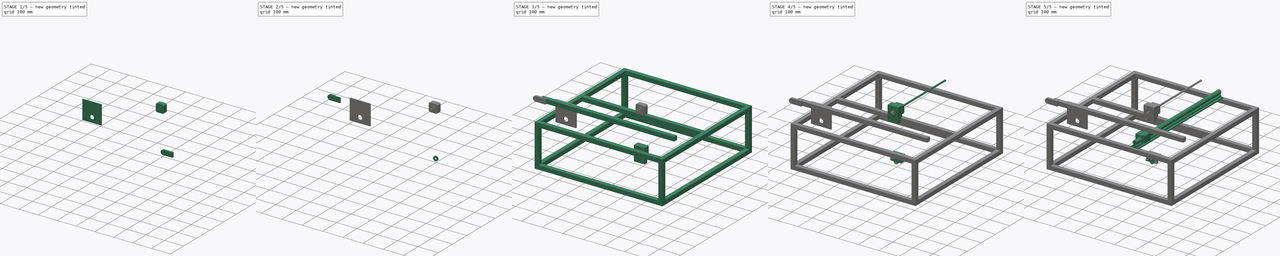
[diagram: build sequence overview — one tinted view per stage of 5, left to right]
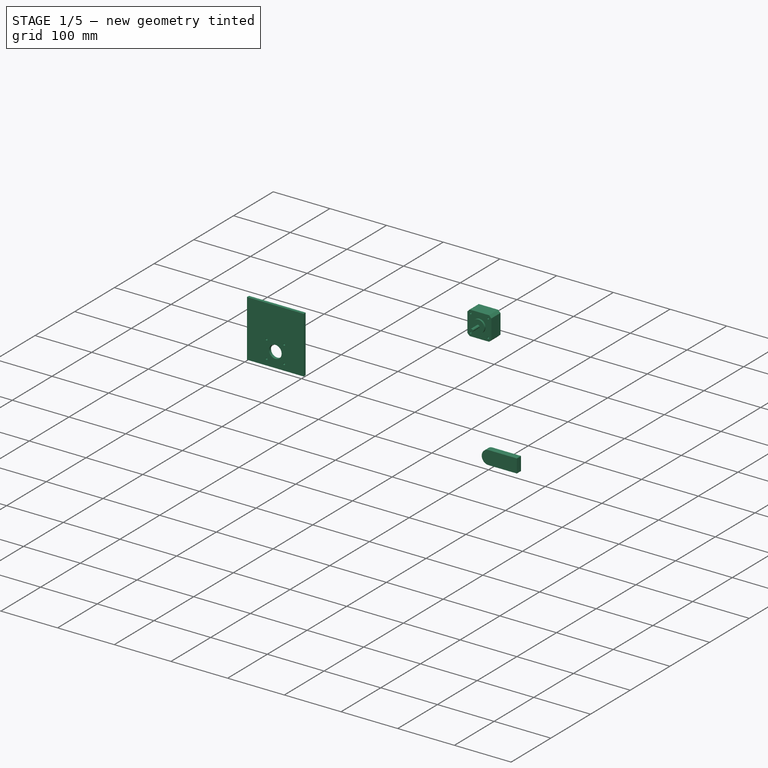
[diagram: stage 1 of 5 — iso view after this stage's code; geometry added in this stage tinted green]
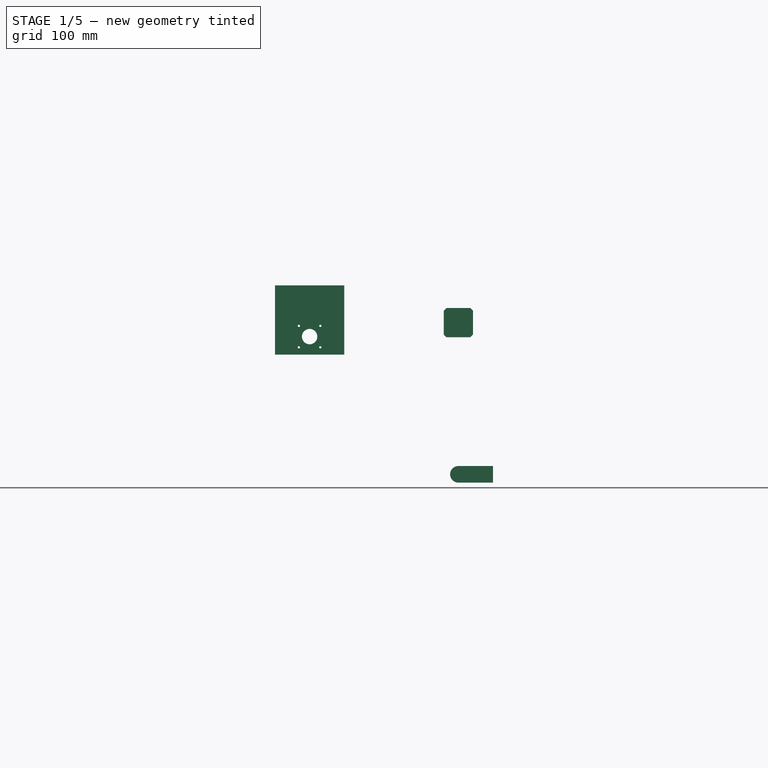
[diagram: stage 1 of 5 — front view after this stage's code; geometry added in this stage tinted green]
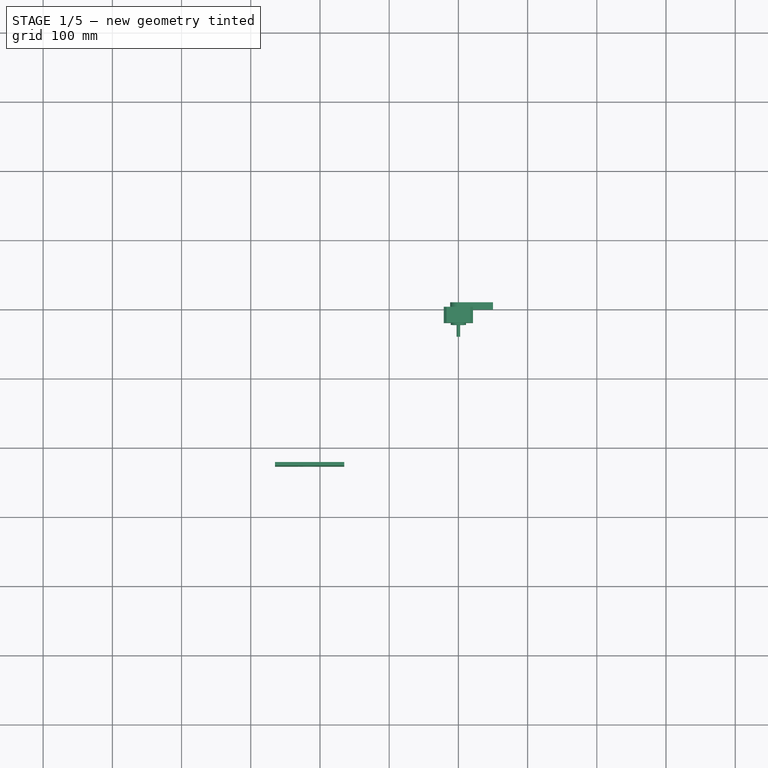
[diagram: stage 1 of 5 — top view after this stage's code; geometry added in this stage tinted green]
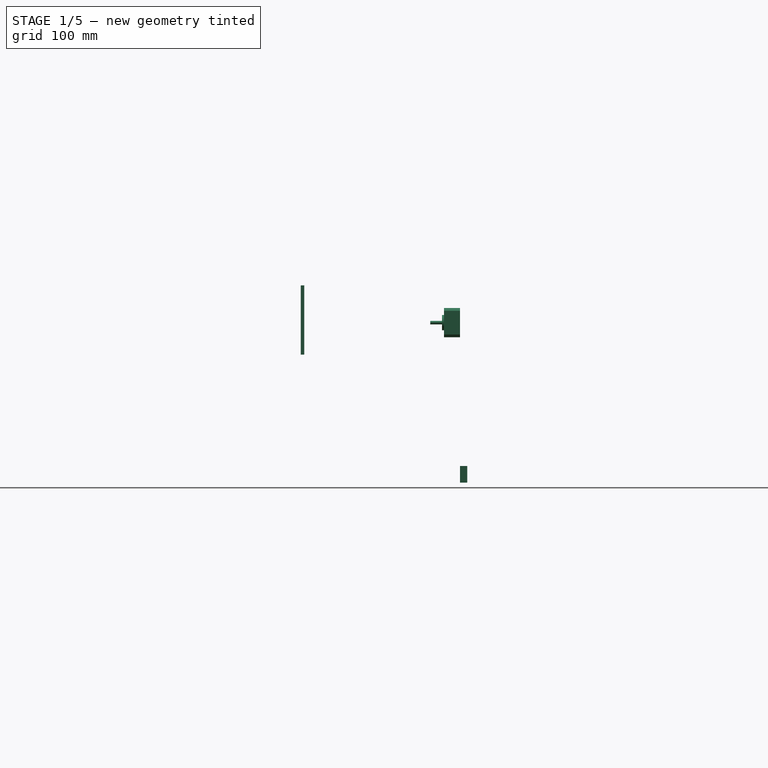
[diagram: stage 1 of 5 — right view after this stage's code; geometry added in this stage tinted green]
FCSTD DOCUMENT  (FreeCAD 0.20R29603 (Git))
Label: PCBStacker
License: All rights reserved
LicenseURL: http://en.wikipedia.org/wiki/All_rights_reserved
objects: PartDesign::Body×17, PartDesign::SubtractiveCylinder×16, Sketcher::SketchObject×10, PartDesign::LinearPattern×10, PartDesign::Pad×8, PartDesign::AdditiveCylinder×8, PartDesign::FeatureBase×7, App::Part×6, PartDesign::AdditiveBox×5, PartDesign::SubtractiveBox×4, PartDesign::Chamfer×2, Spreadsheet::Sheet×1, PartDesign::Revolution×1, PartDesign::Mirrored×1, PartDesign::Pocket×1
note: 135 computed .brp shape members not serialized (recipe doc carries the construction recipe); baked Part::Feature solids carry a one-line shape summary decoded from their .brp

FEATURE [PartDesign::Body] Body006  label="Back Ball Rail Carrage"
  BaseFeature = -> Body005
  Group = -> [Clone002]
  Origin = -> Origin009
  Tip = -> Clone002
FEATURE [PartDesign::AdditiveBox] Box002
  AttacherType = Attacher::AttachEngine3D
  Height = 42.3
  Length = 42.3
  Width = 23
FEATURE [PartDesign::Chamfer] Chamfer
  Angle = 45
  Base = -> Box002 [Edge6,Edge2]
  BaseFeature = -> Box002
  ChamferType = 0
  FlipDirection = false
  Size = 4
  Size2 = 1
  SupportTransform = false
  UseAllEdges = false
FEATURE [PartDesign::Chamfer] Chamfer001
  Angle = 45
  Base = -> Chamfer [Edge3,Edge13]
  BaseFeature = -> Chamfer
  ChamferType = 0
  FlipDirection = false
  Size = 4
  Size2 = 1
  SupportTransform = false
  UseAllEdges = false
FEATURE [PartDesign::SubtractiveCylinder] Cylinder002
  Angle = 360
  AttacherType = Attacher::AttachEngine3D
  AttachmentOffset = pos=(5.65,5.65,-5) rot=(0,0,1;0rad)
  BaseFeature = -> Chamfer001
  FirstAngle = 0
  Height = 10
  MapMode = 5
  Placement = pos=(5.65,5,5.65) rot=(1,0,0;1.5708rad)
  Radius = 1.5
  SecondAngle = 0
  Support = -> [XZ_Plane]
FEATURE [PartDesign::SubtractiveCylinder] Cylinder003
  Angle = 360
  AttacherType = Attacher::AttachEngine3D
  AttachmentOffset = pos=(36.65,5.65,-5) rot=(0,0,1;0rad)
  BaseFeature = -> Cylinder002
  FirstAngle = 0
  Height = 10
  MapMode = 5
  Placement = pos=(36.65,5,5.65) rot=(1,0,0;1.5708rad)
  Radius = 1.5
  SecondAngle = 0
  Support = -> [XZ_Plane]
FEATURE [PartDesign::LinearPattern] LinearPattern004
  BaseFeature = -> Cylinder003
  Direction = -> Z_Axis010
  Length = 31
  Occurrences = 2
  Originals = -> [Cylinder002]
  Placement = pos=(36.65,5,5.65) rot=(1,0,0;1.5708rad)
FEATURE [PartDesign::LinearPattern] LinearPattern005
  BaseFeature = -> LinearPattern004
  Direction = -> Z_Axis010
  Length = 31
  Occurrences = 2
  Originals = -> [Cylinder003]
  Placement = pos=(36.65,5,5.65) rot=(1,0,0;1.5708rad)
FEATURE [PartDesign::AdditiveCylinder] Cylinder004
  Angle = 360
  AttacherType = Attacher::AttachEngine3D
  AttachmentOffset = pos=(21.15,21.15,0) rot=(0,0,1;0rad)
  BaseFeature = -> LinearPattern005
  FirstAngle = 0
  Height = 3
  MapMode = 5
  Placement = pos=(21.15,-4.7e-15,21.15) rot=(1,0,0;1.5708rad)
  Radius = 11
  SecondAngle = 0
  Support = -> [XZ_Plane010]
FEATURE [PartDesign::AdditiveCylinder] Cylinder005
  Angle = 360
  AttacherType = Attacher::AttachEngine3D
  AttachmentOffset = pos=(21.15,21.15,0) rot=(0,0,1;0rad)
  BaseFeature = -> Cylinder004
  FirstAngle = 0
  Height = 20
  MapMode = 5
  Placement = pos=(21.15,-4.7e-15,21.15) rot=(1,0,0;1.5708rad)
  Radius = 2.5
  SecondAngle = 0
  Support = -> [XZ_Plane010]
FEATURE [PartDesign::Body] Body014  label="Leading Conveyor Bearing"
  Group = -> [Cylinder013,Cylinder014,Cylinder015,Cylinder016,Cylinder017,Cylinder018]
  Origin = -> Origin019
  Placement = pos=(-345,-236.5,275) rot=(0,0,1;0rad)
  Tip = -> Cylinder018
  expr: .Placement.Base.x = -1 * <<Params>>.Conveyor_Rail_Length / 2 - 20
  expr: .Placement.Base.y = -1 * <<Params>>.Front_Carrage_Placement + 3.5
  expr: .Placement.Base.z = <<Params>>.Conveyor_Height + <<Params>>.Extrusion_width / 2
FEATURE [App::Part] Part001  label="Carrage"
  Group = -> [Body013,Body014]
  Origin = -> Origin002
FEATURE [Sketcher::SketchObject] Sketch008
  FullyConstrained = true
  MapMode = 5
  Placement = pos=(0,0,0) rot=(1,0,0;1.5708rad)
  Support = -> [XZ_Plane021]
  sketch-geometry (4):
    g0: ArcOfCircle CenterX=0 CenterY=12 CenterZ=0 NormalX=0 NormalY=0 NormalZ=1 AngleXU=0 Radius=12 StartAngle=1.5708 EndAngle=4.71239
    g1: LineSegment StartX=0 StartY=24 StartZ=0 EndX=50 EndY=24 EndZ=0
    g2: LineSegment StartX=50 StartY=24 StartZ=0 EndX=50 EndY=0 EndZ=0
    g3: LineSegment StartX=-2.2e-15 StartY=0 StartZ=0 EndX=50 EndY=0 EndZ=0
  constraints (12):
    c: PointOnObject(g0,g-2)
    c: Coincident(g0,g-1)
    c: PointOnObject(g0,g-2)
    c: Coincident(g1,g0)
    c: Horizontal(g1)
    c: Coincident(g2,g1)
    c: Vertical(g2)
    c: Coincident(g3,g0)
    c: Coincident(g3,g2)
    c: Horizontal(g3)
    c: DistanceY(g2,g1) = 24
    c: DistanceX(g3,g3) = 50
FEATURE [PartDesign::Pad] Pad007
  Direction = (0,-1,2e-16)
  Length = 10.5
  Length2 = 10
  Placement = pos=(0,0,0) rot=(1,0,0;1.5708rad)
  Profile = -> Sketch008
  ReferenceAxis = -> Sketch008 [N_Axis]
  Reversed = true
  Type = 0
FEATURE [PartDesign::Body] Body016  label="Leading Bearing Holder - Back "
  BaseFeature = -> Body015
  Group = -> [Clone]
  Origin = -> Origin022
  Placement = pos=(0,-480,550) rot=(1,0,0;3.14159rad)
  Tip = -> Clone
  expr: .Placement.Base.y = -1 * <<Params>>.Front_Carrage_Placement * 2
  expr: .Placement.Base.z = <<Params>>.Conveyor_Height * 2 + <<Params>>.Extrusion_width
FEATURE [Sketcher::SketchObject] Sketch009
  AttachmentOffset = pos=(0,0,230) rot=(0,0,1;0rad)
  FullyConstrained = true
  MapMode = 5
  Placement = pos=(0,-230,5.11e-14) rot=(1,0,0;1.5708rad)
  Support = -> [XZ_Plane023]
  expr: .AttachmentOffset.Base.x = 0
  expr: .AttachmentOffset.Base.y = 0
  expr: .AttachmentOffset.Base.z = <<Params>>.Front_Carrage_Placement - <<Params>>.Extrusion_width / 2
  expr: Constraints[10] = <<Params>>.BD_X_Length
  expr: Constraints[11] = <<Params>>.BD_Y_Length
  expr: Constraints[8] = <<Params>>.Carrage_Rails_Height + <<Params>>.Conveyor_Offset_From_Carrage_Rail + <<Params>>.Extrusion_width
  expr: Constraints[9] = <<Params>>.BD_X_Placement
  sketch-geometry (4):
    g0: LineSegment StartX=-265 StartY=285 StartZ=0 EndX=-165 EndY=285 EndZ=0
    g1: LineSegment StartX=-165 StartY=285 StartZ=0 EndX=-165 EndY=185 EndZ=0
    g2: LineSegment StartX=-165 StartY=185 StartZ=0 EndX=-265 EndY=185 EndZ=0
    g3: LineSegment StartX=-265 StartY=185 StartZ=0 EndX=-265 EndY=285 EndZ=0
  constraints (12):
    c: Horizontal(g0)
    c: Coincident(g0,g1)
    c: Vertical(g1)
    c: Coincident(g1,g2)
    c: Horizontal(g2)
    c: Coincident(g2,g3)
    c: Coincident(g3,g0)
    c: Vertical(g3)
    c: DistanceY(g-1,g0) = 285
    c: DistanceX(g1,g-1) = 165
    c: DistanceX(g2,g1) = 100
    c: DistanceY(g1,g0) = 100
FEATURE [PartDesign::Pad] Pad008
  Direction = (0,-1,2e-16)
  Length = 5
  Length2 = 10
  Placement = pos=(0,0,0) rot=(1,0,0;1.5708rad)
  Profile = -> Sketch009
  ReferenceAxis = -> Sketch009 [N_Axis]
  Reversed = true
  Type = 0
FEATURE [PartDesign::FeatureBase] Clone006
  BaseFeature = -> Body007
  Placement = pos=(-21.15,-23,210) rot=(0,0,1;0rad)
FEATURE [PartDesign::Body] Body018  label="Belt Driver Stepper"
  Group = -> [Clone006]
  Origin = -> Origin024
  Placement = pos=(-215,-202,-20) rot=(0,0,1;0rad)
  Tip = -> Clone006
  expr: .Placement.Base.x = -1 * (<<Params>>.BD_X_Placement + <<Params>>.BD_X_Length / 2)
  expr: .Placement.Base.y = -<<Params>>.Front_Carrage_Placement + <<Params>>.Extrusion_width / 2 + 5 + 23
  expr: .Placement.Base.z = -<<Params>>.Extrusion_width
FEATURE [App::Part] Part002  label="Movement Hardware"
  Group = -> [Body003,Body004,Body005,Body006,Body007,Body008,Body009,Clone003,Clone004,Body018]
  Origin = -> Origin006
FEATURE [Sketcher::SketchObject] Sketch010
  AttachmentOffset = pos=(-215,211,230) rot=(0,0,1;0rad)
  FullyConstrained = true
  MapMode = 5
  Placement = pos=(-215,-230,211) rot=(1,0,0;1.5708rad)
  Support = -> [XZ_Plane023]
  expr: .AttachmentOffset.Base.x = -<<Params>>.Front_Carrage_Placement + <<Params>>.Extrusion_width / 2 + 5 + 10
  expr: .AttachmentOffset.Base.y = <<Params>>.Conveyor_Height - 54
  expr: .AttachmentOffset.Base.z = <<Params>>.Front_Carrage_Placement - <<Params>>.Extrusion_width / 2
  sketch-geometry (5):
    g0: Circle CenterX=0 CenterY=0 CenterZ=0 NormalX=0 NormalY=0 NormalZ=1 AngleXU=0 Radius=11.1
    g1: Circle CenterX=-15.5 CenterY=15.5 CenterZ=0 NormalX=0 NormalY=0 NormalZ=1 AngleXU=0 Radius=1.6
    g2: Circle CenterX=15.5 CenterY=15.5 CenterZ=0 NormalX=0 NormalY=0 NormalZ=1 AngleXU=0 Radius=1.6
    g3: Circle CenterX=15.5 CenterY=-15.5 CenterZ=0 NormalX=0 NormalY=0 NormalZ=1 AngleXU=0 Radius=1.6
    g4: Circle CenterX=-15.5 CenterY=-15.5 CenterZ=0 NormalX=0 NormalY=0 NormalZ=1 AngleXU=0 Radius=1.6
  constraints (11):
    c: Coincident(g0,g-1)
    c: Diameter(g0) = 22.2
    c: Diameter(g1) = 3.2
    c: DistanceX(g1,g0) = 15.5
    c: DistanceY(g0,g1) = 15.5
    c: Diameter(g2) = 3.2
    c: Symmetric(g2,g1,g-2)
    c: Diameter(g4) = 3.2
    c: Diameter(g3) = 3.2
    c: Symmetric(g3,g2,g-1)
    c: Symmetric(g3,g4,g-2)
FEATURE [PartDesign::Pocket] Pocket
  BaseFeature = -> Pad008
  Direction = (0,1,-2e-16)
  Length = 5
  Length2 = 5
  Placement = pos=(0,0,0) rot=(1,0,0;1.5708rad)
  Profile = -> Sketch010
  ReferenceAxis = -> Sketch010 [N_Axis]
  Type = 0
FEATURE [PartDesign::Body] Body017  label="Belt Driver"
  Group = -> [Sketch009,Pad008,Sketch010,Pocket]
  Origin = -> Origin023
  Tip = -> Pocket
FEATURE [App::Part] Part005  label="Printed Conveyor Parts"
  Group = -> [Body015,Body016,Body017]
  Origin = -> Origin020
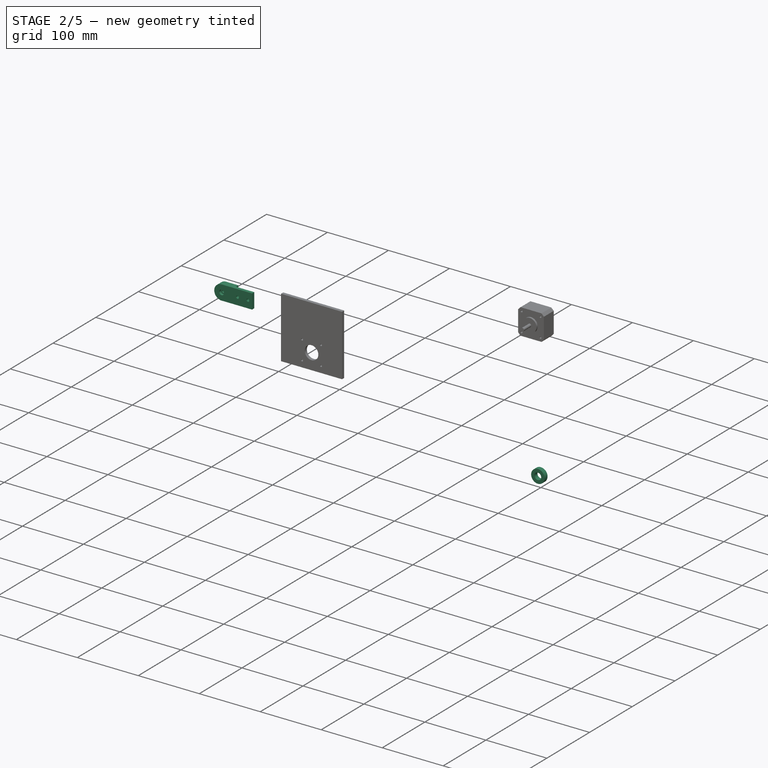
[diagram: stage 2 of 5 — iso view after this stage's code; geometry added in this stage tinted green]
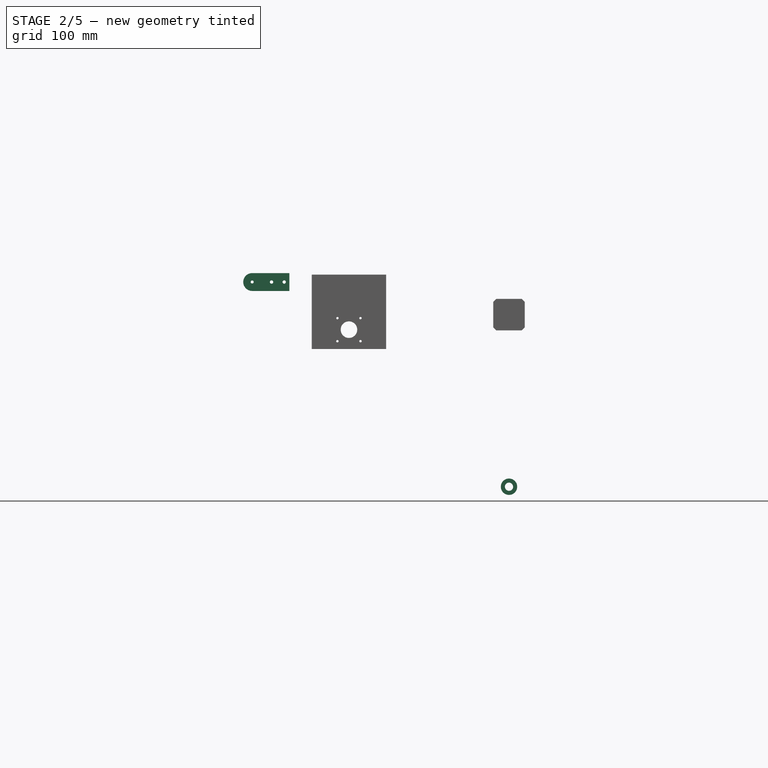
[diagram: stage 2 of 5 — front view after this stage's code; geometry added in this stage tinted green]
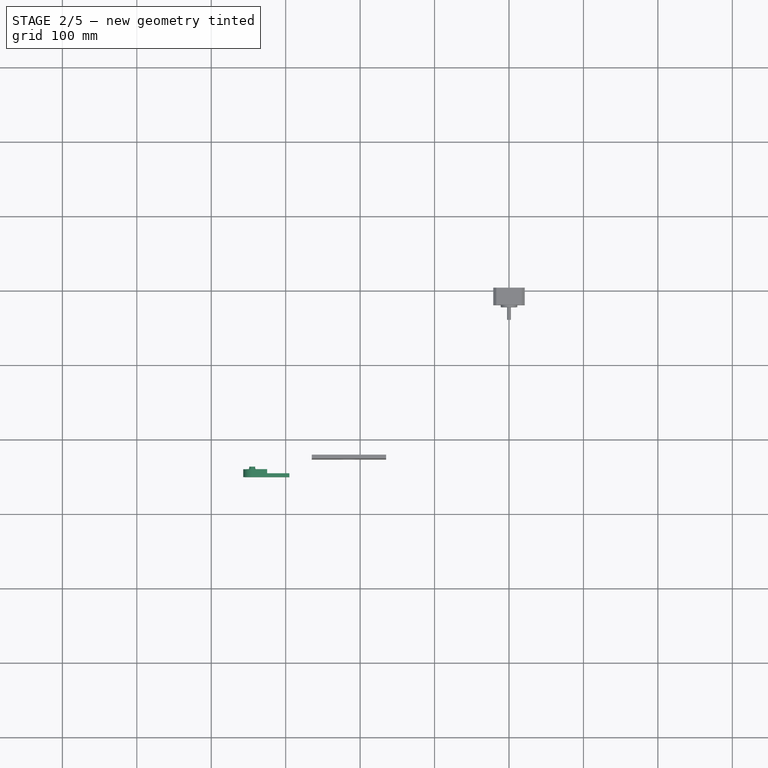
[diagram: stage 2 of 5 — top view after this stage's code; geometry added in this stage tinted green]
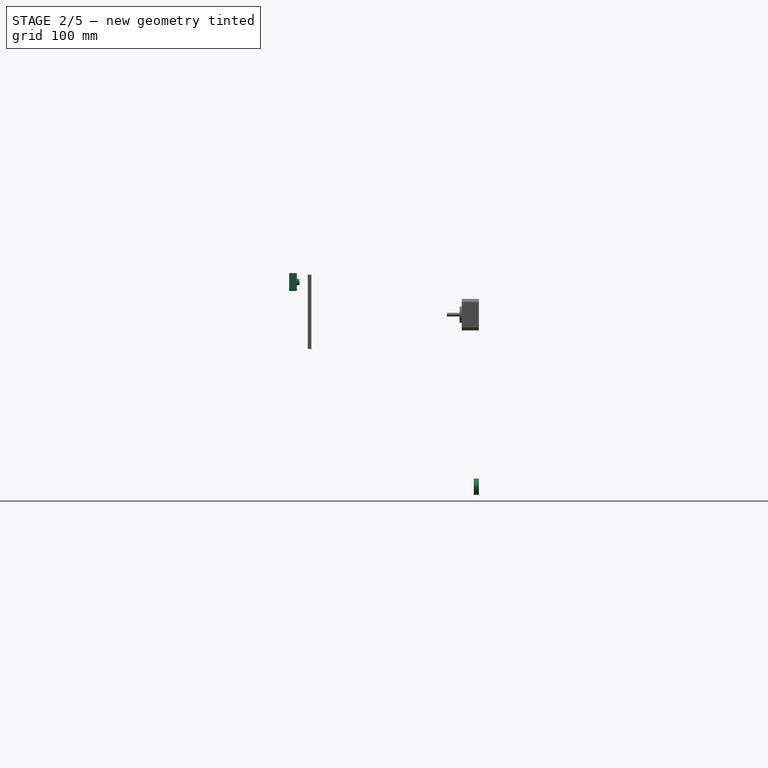
[diagram: stage 2 of 5 — right view after this stage's code; geometry added in this stage tinted green]
FEATURE [PartDesign::Body] Body013  label="Carrage Extrusion Rail"
  Group = -> [Box008]
  Origin = -> Origin018
  Tip = -> Box008
FEATURE [PartDesign::AdditiveCylinder] Cylinder013
  Angle = 360
  AttacherType = Attacher::AttachEngine3D
  FirstAngle = 0
  Height = 7
  MapMode = 5
  Placement = pos=(0,0,0) rot=(1,0,0;1.5708rad)
  Radius = 11
  SecondAngle = 0
  Support = -> [XZ_Plane019]
FEATURE [PartDesign::SubtractiveCylinder] Cylinder014
  Angle = 360
  AttacherType = Attacher::AttachEngine3D
  BaseFeature = -> Cylinder013
  FirstAngle = 0
  Height = 7
  MapMode = 5
  Placement = pos=(0,0,0) rot=(1,0,0;1.5708rad)
  Radius = 9.5
  SecondAngle = 0
  Support = -> [XZ_Plane019]
FEATURE [PartDesign::AdditiveCylinder] Cylinder015
  Angle = 360
  AttacherType = Attacher::AttachEngine3D
  BaseFeature = -> Cylinder014
  FirstAngle = 0
  Height = 7
  MapMode = 5
  Placement = pos=(0,0,0) rot=(1,0,0;1.5708rad)
  Radius = 9.5
  SecondAngle = 0
  Support = -> [XZ_Plane019]
FEATURE [PartDesign::SubtractiveCylinder] Cylinder016
  Angle = 360
  AttacherType = Attacher::AttachEngine3D
  BaseFeature = -> Cylinder015
  FirstAngle = 0
  Height = 7
  MapMode = 5
  Placement = pos=(0,0,0) rot=(1,0,0;1.5708rad)
  Radius = 5.5
  SecondAngle = 0
  Support = -> [XZ_Plane019]
FEATURE [PartDesign::SubtractiveBox] Box009
  AttacherType = Attacher::AttachEngine3D
  AttachmentOffset = pos=(20,0,-15) rot=(0,0,1;0rad)
  BaseFeature = -> Pad007
  Height = 10
  Length = 42
  MapMode = 5
  Placement = pos=(20,15,3.3e-15) rot=(1,0,0;1.5708rad)
  Support = -> [XZ_Plane021]
  Width = 28
FEATURE [PartDesign::AdditiveCylinder] Cylinder020
  Angle = 360
  AttacherType = Attacher::AttachEngine3D
  AttachmentOffset = pos=(0,12,-11.5) rot=(0,0,1;0rad)
  BaseFeature = -> Box009
  FirstAngle = 0
  Height = 1
  MapMode = 5
  Placement = pos=(0,11.5,12) rot=(1,0,0;1.5708rad)
  Radius = 4.5
  SecondAngle = 0
  Support = -> [XZ_Plane021]
FEATURE [PartDesign::AdditiveCylinder] Cylinder021
  Angle = 360
  AttacherType = Attacher::AttachEngine3D
  AttachmentOffset = pos=(0,12,-14) rot=(0,0,1;0rad)
  BaseFeature = -> Cylinder020
  FirstAngle = 0
  Height = 3
  MapMode = 5
  Placement = pos=(0,14,12) rot=(1,0,0;1.5708rad)
  Radius = 4
  SecondAngle = 0
  Support = -> [XZ_Plane021]
FEATURE [PartDesign::SubtractiveCylinder] Cylinder022
  Angle = 360
  AttacherType = Attacher::AttachEngine3D
  AttachmentOffset = pos=(0,12,-16) rot=(0,0,1;0rad)
  BaseFeature = -> Cylinder021
  FirstAngle = 0
  Height = 30
  MapMode = 5
  Placement = pos=(0,16,12) rot=(1,0,0;1.5708rad)
  Radius = 2
  SecondAngle = 0
  Support = -> [XZ_Plane021]
FEATURE [PartDesign::SubtractiveCylinder] Cylinder023
  Angle = 360
  AttacherType = Attacher::AttachEngine3D
  AttachmentOffset = pos=(0,12,-4) rot=(0,0,1;0rad)
  BaseFeature = -> Cylinder022
  FirstAngle = 0
  Height = 10
  MapMode = 5
  Placement = pos=(0,4,12) rot=(1,0,0;1.5708rad)
  Radius = 4
  SecondAngle = 0
  Support = -> [XZ_Plane021]
FEATURE [PartDesign::SubtractiveCylinder] Cylinder024
  Angle = 360
  AttacherType = Attacher::AttachEngine3D
  AttachmentOffset = pos=(26,12,-6) rot=(0,0,1;0rad)
  BaseFeature = -> Cylinder023
  FirstAngle = 0
  Height = 10
  MapMode = 5
  Placement = pos=(26,6,12) rot=(1,0,0;1.5708rad)
  Radius = 2.25
  SecondAngle = 0
  Support = -> [XZ_Plane021]
FEATURE [PartDesign::LinearPattern] LinearPattern
  BaseFeature = -> Cylinder024
  Direction = -> X_Axis021
  Length = 17
  Occurrences = 2
  Originals = -> [Cylinder024]
  Placement = pos=(26,6,12) rot=(1,0,0;1.5708rad)
FEATURE [PartDesign::Body] Body015  label="Leading Bearing Holder"
  Group = -> [Sketch008,Pad007,Box009,Cylinder020,Cylinder021,Cylinder022,Cylinder023,Cylinder024,LinearPattern]
  Origin = -> Origin021
  Placement = pos=(-345,-255,263) rot=(0,0,1;0rad)
  Tip = -> LinearPattern
  expr: .Placement.Base.x = -1 * <<Params>>.Conveyor_Rail_Length / 2 - 20
  expr: .Placement.Base.y = -1 * <<Params>>.Front_Carrage_Placement - <<Params>>.Extrusion_width + 5
  expr: .Placement.Base.z = <<Params>>.Conveyor_Height - 2
FEATURE [PartDesign::FeatureBase] Clone
  BaseFeature = -> Body015
  Placement = pos=(-345,-255,263) rot=(0,0,1;0rad)
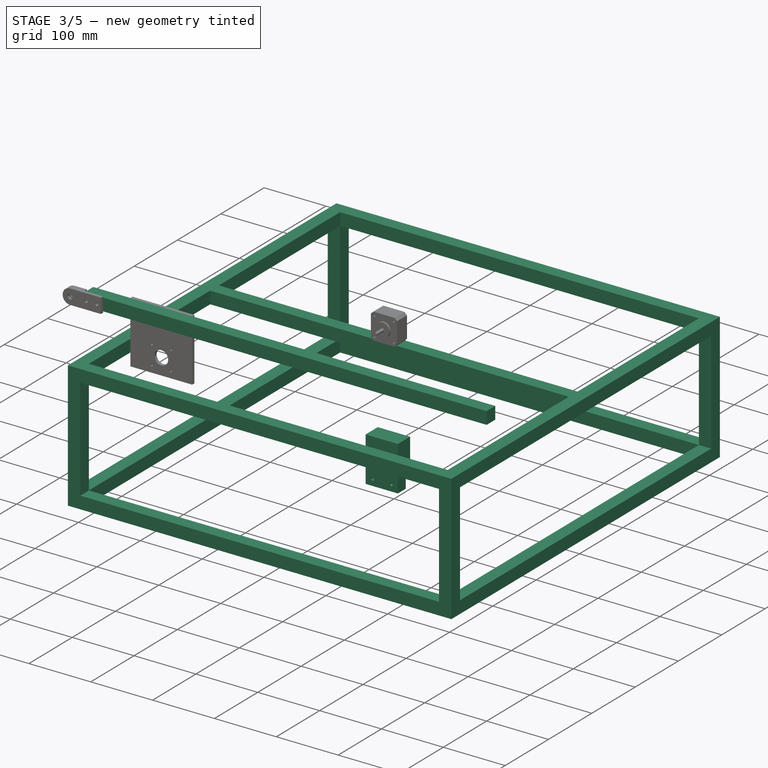
[diagram: stage 3 of 5 — iso view after this stage's code; geometry added in this stage tinted green]
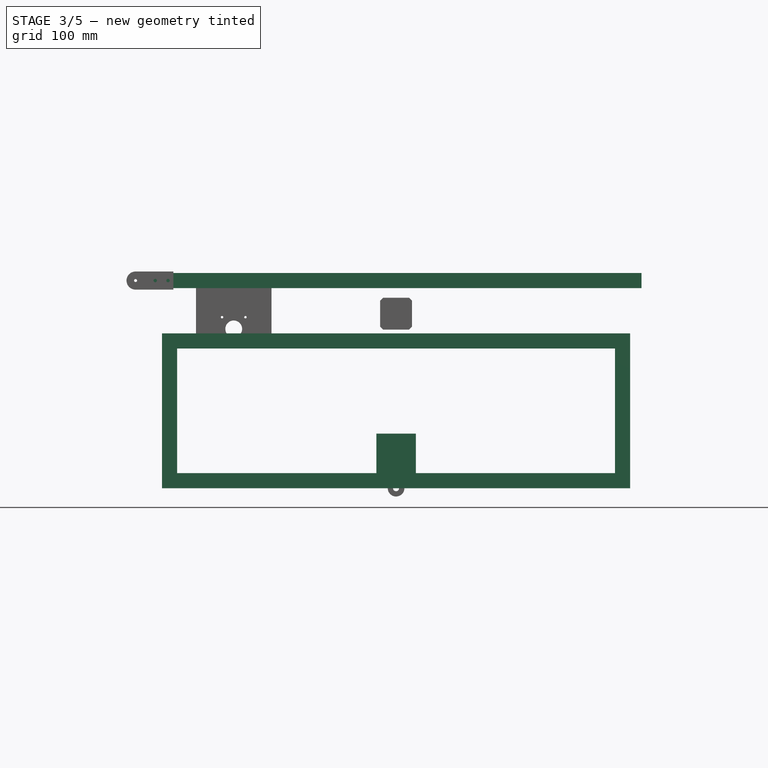
[diagram: stage 3 of 5 — front view after this stage's code; geometry added in this stage tinted green]
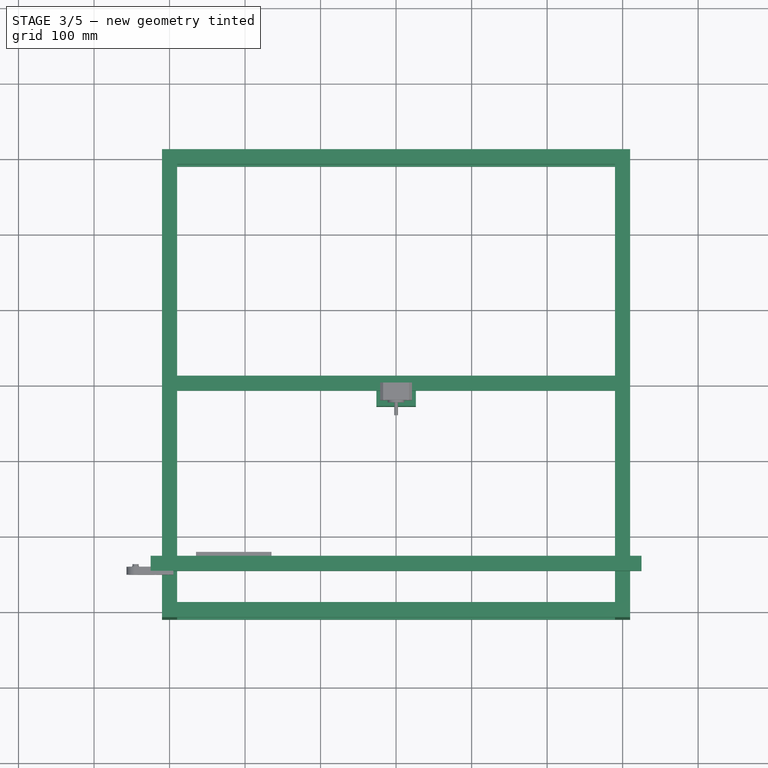
[diagram: stage 3 of 5 — top view after this stage's code; geometry added in this stage tinted green]
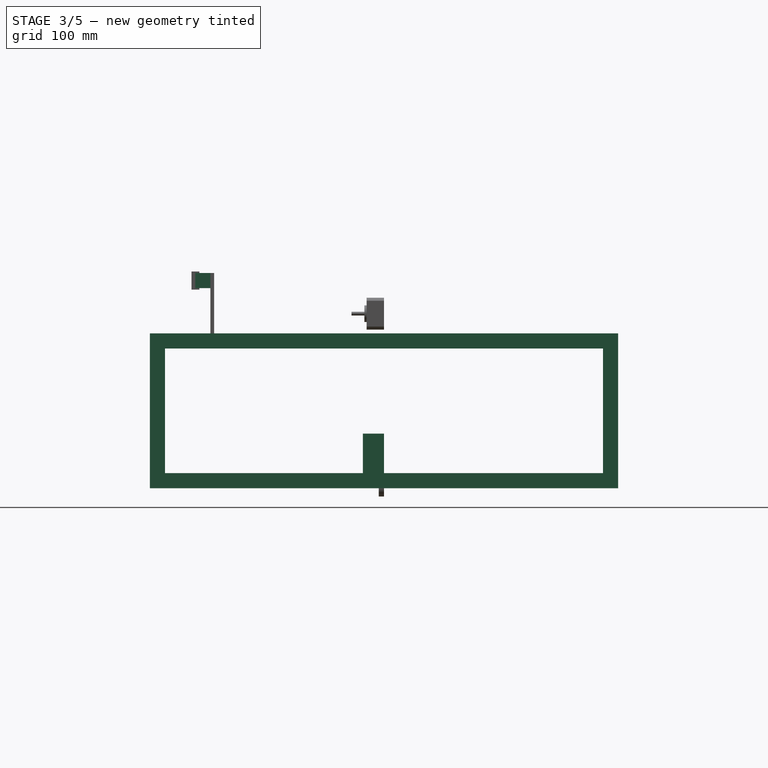
[diagram: stage 3 of 5 — right view after this stage's code; geometry added in this stage tinted green]
FEATURE [Spreadsheet::Sheet] Spreadsheet  label="Params"
  cells = A1=Frame Parts; C1=Descripion (If Needed); A2=Total_X; B2(Total_X)=600; A3=Total_Y; B3(Total_Y)=600; A4=Base_Z_height; B4(Base_Z_height)=300; A5=Extrusion_width; B5(Extrusion_width)=20; A7=Carrage Parts; A8=Carrage_length; B8(Carrage_length)=575; A9=Carrage_gap_between_plates; B9(Carrage_gap_between_plates)=40; C9=Basically the width of the idiler pullies for the belt; A10=Carrage_height; B10(Carrage_height)==Base_Z_height - 50; A11=Carrage_trapizoide_offset; B11(Carrage_trapizoide_offset)=200; A12=Carrage_offset_from_ground; B12(Carrage_offset_from_ground)=100; A13=Carrage_Plate_Thickness; B13(Carrage_Plate_Thickness)=10; A14=Front_Carrage_Placement; B14(Front_Carrage_Placement)=240; C14=How far forward (In Y) the carrage is placed; A15=Carrage_Rails_Height; B15(Carrage_Rails_Height)==Base_Z_height * 0.75; A16=Front_Ball_Slide_Location; B16(Front_Ball_Slide_Location)==Total_X * 0.2; A17=Back_Ball_Slide_Location; B17(Back_Ball_Slide_Location)==Total_X * 0.2 * 2; A19=Conveyor Rail Parts; A20=Conveyor_Rail_Length; B20(Conveyor_Rail_Length)==Total_X + 50; A21=Conveyor_Offset_From_Carrage_Rail; B21(Conveyor_Offset_From_Carrage_Rail)=40; A22=Conveyor_Height; B22(Conveyor_Height)==Carrage_Rails_Height + Conveyor_Offset_From_Carrage_Rail; C22=Edit Conveyor offset instead of this one; A24=Belt Driver Parts; A25=BD_X_Placement; B25(BD_X_Placement)=165; C25=Placement of the Belt Driver Plate from center; A26=BD_X_Length; B26(BD_X_Length)=100; A27=BD_Y_Length; B27(BD_Y_Length)=100
FEATURE [Sketcher::SketchObject] Sketch
  AttachmentOffset = pos=(0,0,290) rot=(0,0,1;0rad)
  FullyConstrained = true
  MapMode = 5
  Placement = pos=(290,-6.44e-14,6.44e-14) rot=(0.57735,0.57735,0.57735;2.0944rad)
  Support = -> [YZ_Plane001]
  expr: .AttachmentOffset.Base.x = 0
  expr: .AttachmentOffset.Base.y = 0
  expr: .AttachmentOffset.Base.z = <<Params>>.Total_X / 2 - <<Params>>.Extrusion_width / 2
  expr: Constraints[16] = <<Params>>.Extrusion_width
  expr: Constraints[17] = <<Params>>.Extrusion_width
  expr: Constraints[18] = <<Params>>.Extrusion_width
  expr: Constraints[19] = <<Params>>.Extrusion_width
  expr: Constraints[20] = <<Params>>.Total_Y + <<Params>>.Extrusion_width
  expr: Constraints[21] = <<Params>>.Carrage_Rails_Height - <<Params>>.Extrusion_width
  expr: Constraints[22] = (<<Params>>.Total_Y + <<Params>>.Extrusion_width) / 2
  sketch-geometry (8):
    g0: LineSegment StartX=-290 StartY=185 StartZ=0 EndX=290 EndY=185 EndZ=0
    g1: LineSegment StartX=290 StartY=185 StartZ=0 EndX=290 EndY=20 EndZ=0
    g2: LineSegment StartX=290 StartY=20 StartZ=0 EndX=-290 EndY=20 EndZ=0
    g3: LineSegment StartX=-290 StartY=20 StartZ=0 EndX=-290 EndY=185 EndZ=0
    g4: LineSegment StartX=310 StartY=0 StartZ=0 EndX=-310 EndY=0 EndZ=0
    g5: LineSegment StartX=-310 StartY=0 StartZ=0 EndX=-310 EndY=205 EndZ=0
    g6: LineSegment StartX=-310 StartY=205 StartZ=0 EndX=310 EndY=205 EndZ=0
    g7: LineSegment StartX=310 StartY=205 StartZ=0 EndX=310 EndY=0 EndZ=0
  constraints (24):
    c: Coincident(g0,g1)
    c: Coincident(g1,g2)
    c: Coincident(g2,g3)
    c: Coincident(g3,g0)
    c: Horizontal(g0)
    c: Horizontal(g2)
    c: Vertical(g1)
    c: Vertical(g3)
    c: Coincident(g4,g5)
    c: Coincident(g5,g6)
    c: Coincident(g6,g7)
    c: Coincident(g7,g4)
    c: Horizontal(g4)
    c: Horizontal(g6)
    c: Vertical(g5)
    c: Vertical(g7)
    c: DistanceX(g0,g6) = 20
    c: DistanceX(g5,g0) = 20
    c: DistanceY(g4,g1) = 20
    c: DistanceY(g0,g6) = 20
    c: DistanceX(g4,g4) = 620
    c: DistanceY(g4,g6) = 205
    c: DistanceX(g4,g-1) = 310
    c: DistanceY(g4,g-1) = 0
FEATURE [PartDesign::Pad] Pad  label="Right Frame Box"
  Direction = (1,-2e-16,3e-16)
  Length = 20
  Length2 = 10
  Placement = pos=(0,0,0) rot=(0.57735,0.57735,0.57735;2.0944rad)
  Profile = -> Sketch
  ReferenceAxis = -> Sketch [N_Axis]
  Type = 0
  expr: Length = <<Params>>.Extrusion_width
FEATURE [Sketcher::SketchObject] Sketch001
  FullyConstrained = true
  MapMode = 5
  Support = -> [XY_Plane001]
  expr: Constraints[16] = <<Params>>.Extrusion_width
  expr: Constraints[17] = <<Params>>.Extrusion_width
  expr: Constraints[18] = (<<Params>>.Total_X + <<Params>>.Extrusion_width) / 2
  expr: Constraints[19] = <<Params>>.Total_X + <<Params>>.Extrusion_width
  expr: Constraints[20] = (<<Params>>.Total_Y + <<Params>>.Extrusion_width) / 2
  expr: Constraints[21] = <<Params>>.Extrusion_width
  expr: Constraints[22] = <<Params>>.Total_Y + <<Params>>.Extrusion_width
  expr: Constraints[23] = <<Params>>.Extrusion_width
  sketch-geometry (8):
    g0: LineSegment StartX=-290 StartY=290 StartZ=0 EndX=290 EndY=290 EndZ=0
    g1: LineSegment StartX=290 StartY=290 StartZ=0 EndX=290 EndY=-290 EndZ=0
    g2: LineSegment StartX=290 StartY=-290 StartZ=0 EndX=-290 EndY=-290 EndZ=0
    g3: LineSegment StartX=-290 StartY=-290 StartZ=0 EndX=-290 EndY=290 EndZ=0
    g4: LineSegment StartX=-310 StartY=310 StartZ=0 EndX=310 EndY=310 EndZ=0
    g5: LineSegment StartX=310 StartY=310 StartZ=0 EndX=310 EndY=-310 EndZ=0
    g6: LineSegment StartX=310 StartY=-310 StartZ=0 EndX=-310 EndY=-310 EndZ=0
    g7: LineSegment StartX=-310 StartY=-310 StartZ=0 EndX=-310 EndY=310 EndZ=0
  constraints (24):
    c: Coincident(g0,g1)
    c: Coincident(g1,g2)
    c: Coincident(g2,g3)
    c: Coincident(g3,g0)
    c: Horizontal(g0)
    c: Horizontal(g2)
    c: Vertical(g1)
    c: Vertical(g3)
    c: Coincident(g4,g5)
    c: Coincident(g5,g6)
    c: Coincident(g6,g7)
    c: Coincident(g7,g4)
    c: Horizontal(g4)
    c: Horizontal(g6)
    c: Vertical(g5)
    c: Vertical(g7)
    c: DistanceX(g0,g4) = 20
    c: DistanceX(g4,g0) = 20
    c: DistanceX(g-1,g5) = 310
    c: DistanceX(g6,g5) = 620
    c: DistanceY(g5,g-1) = 310
    c: DistanceY(g5,g1) = 20
    c: DistanceY(g5,g4) = 620
    c: DistanceY(g0,g4) = 20
FEATURE [PartDesign::Pad] Pad001  label="Carrage Rail"
  BaseFeature = -> Pad
  Direction = (0,0,1)
  Length = 20
  Length2 = 10
  Placement = pos=(0,0,0) rot=(0.57735,0.57735,0.57735;2.0944rad)
  Profile = -> Sketch001
  ReferenceAxis = -> Sketch001 [N_Axis]
  Type = 0
  expr: Length = <<Params>>.Extrusion_width
FEATURE [PartDesign::AdditiveBox] Box005
  AttacherType = Attacher::AttachEngine3D
  AttachmentOffset = pos=(-26.15,-28,0) rot=(0,0,1;0rad)
  Height = 72.3
  Length = 52.3
  MapMode = 5
  Placement = pos=(-26.15,-28,0) rot=(0,0,1;0rad)
  Support = -> [XY_Plane]
  Width = 28
  expr: .AttachmentOffset.Base.x = -52.3 / 2
  expr: .AttachmentOffset.Base.y = -28
  expr: Height = <<Params>>.Extrusion_width + 5 + 42.3 + 5
  expr: Length = 42.3 + 10
  expr: Width = 23 + 5
FEATURE [PartDesign::SubtractiveBox] Box006
  AttacherType = Attacher::AttachEngine3D
  AttachmentOffset = pos=(-40,-10,0) rot=(0,0,1;0rad)
  BaseFeature = -> Box005
  Height = 20
  Length = 80
  MapMode = 5
  Placement = pos=(-40,-10,0) rot=(0,0,1;0rad)
  Support = -> [XY_Plane015]
  Width = 20
  expr: .AttachmentOffset.Base.y = -<<Params>>.Extrusion_width / 2
  expr: Height = <<Params>>.Extrusion_width
  expr: Length = 80
  expr: Width = <<Params>>.Extrusion_width
FEATURE [PartDesign::SubtractiveBox] Box007
  AttacherType = Attacher::AttachEngine3D
  AttachmentOffset = pos=(-21.25,-23,25) rot=(0,0,1;0rad)
  BaseFeature = -> Box006
  Height = 42.5
  Length = 42.5
  MapMode = 5
  Placement = pos=(-21.25,-23,25) rot=(0,0,1;0rad)
  Support = -> [XY_Plane015]
  Width = 23
  expr: .AttachmentOffset.Base.x = -42.5 / 2
  expr: .AttachmentOffset.Base.z = <<Params>>.Extrusion_width + 5
FEATURE [PartDesign::SubtractiveCylinder] Cylinder009
  Angle = 360
  AttacherType = Attacher::AttachEngine3D
  AttachmentOffset = pos=(-15,10,6) rot=(0,0,1;0rad)
  BaseFeature = -> Box007
  FirstAngle = 0
  Height = 30
  MapMode = 5
  Placement = pos=(-15,-6,10) rot=(1,0,0;1.5708rad)
  Radius = 2.5
  SecondAngle = 0
  Support = -> [XZ_Plane015]
  expr: .AttachmentOffset.Base.y = <<Params>>.Extrusion_width / 2
FEATURE [PartDesign::Mirrored] Mirrored001
  BaseFeature = -> Cylinder009
  MirrorPlane = -> YZ_Plane015
  Originals = -> [Cylinder009]
  Placement = pos=(-15,-6,10) rot=(1,0,0;1.5708rad)
FEATURE [PartDesign::Body] Body012  label="Back Panckcake Stepper Adapter"
  BaseFeature = -> Body011
  Group = -> [Clone005]
  Origin = -> Origin017
  Placement = pos=(0,0,0) rot=(0,0,1;3.14159rad)
  Tip = -> Clone005
FEATURE [App::Part] Part004  label="Duplicated Printed Adapters - DO NOT PRINT"
  Group = -> [Body012]
  Origin = -> Origin016
FEATURE [PartDesign::LinearPattern] LinearPattern001
  BaseFeature = -> Pad001
  Direction = -> Z_Axis001
  Length = 185
  Occurrences = 2
  Originals = -> [Pad001]
  Placement = pos=(0,0,0) rot=(0.57735,0.57735,0.57735;2.0944rad)
  expr: Length = <<Params>>.Carrage_Rails_Height - <<Params>>.Extrusion_width * 2
FEATURE [PartDesign::AdditiveBox] Box
  AttacherType = Attacher::AttachEngine3D
  AttachmentOffset = pos=(-290,-10,185) rot=(0,0,1;0rad)
  BaseFeature = -> LinearPattern001
  Height = 20
  Length = 580
  MapMode = 5
  Placement = pos=(-290,-10,185) rot=(0,0,1;0rad)
  Support = -> [XY_Plane001]
  Width = 20
  expr: .AttachmentOffset.Base.x = -1 * <<Params>>.Total_X / 2 + <<Params>>.Extrusion_width / 2
  expr: .AttachmentOffset.Base.y = -1 * <<Params>>.Extrusion_width / 2
  expr: .AttachmentOffset.Base.z = <<Params>>.Carrage_Rails_Height - <<Params>>.Extrusion_width * 2
  expr: Height = <<Params>>.Extrusion_width
  expr: Length = <<Params>>.Total_X - <<Params>>.Extrusion_width
  expr: Width = <<Params>>.Extrusion_width
FEATURE [Sketcher::SketchObject] Sketch007
  AttachmentOffset = pos=(0,0,-310) rot=(0,0,1;0rad)
  FullyConstrained = true
  MapMode = 5
  Placement = pos=(-310,6.88e-14,-6.88e-14) rot=(0.57735,0.57735,0.57735;2.0944rad)
  Support = -> [YZ_Plane001]
  expr: .AttachmentOffset.Base.z = -<<Params>>.Total_X / 2 - <<Params>>.Extrusion_width / 2
  expr: Constraints[16] = <<Params>>.Extrusion_width
  expr: Constraints[17] = <<Params>>.Extrusion_width
  expr: Constraints[18] = <<Params>>.Carrage_Rails_Height - <<Params>>.Extrusion_width
  expr: Constraints[20] = <<Params>>.Extrusion_width
  expr: Constraints[21] = <<Params>>.Extrusion_width
  expr: Constraints[22] = <<Params>>.Total_Y + <<Params>>.Extrusion_width
  expr: Constraints[23] = <<Params>>.Total_Y / 2 + <<Params>>.Extrusion_width / 2
  sketch-geometry (8):
    g0: LineSegment StartX=-290 StartY=185 StartZ=0 EndX=290 EndY=185 EndZ=0
    g1: LineSegment StartX=290 StartY=185 StartZ=0 EndX=290 EndY=20 EndZ=0
    g2: LineSegment StartX=290 StartY=20 StartZ=0 EndX=-290 EndY=20 EndZ=0
    g3: LineSegment StartX=-290 StartY=20 StartZ=0 EndX=-290 EndY=185 EndZ=0
    g4: LineSegment StartX=310 StartY=0 StartZ=0 EndX=-310 EndY=0 EndZ=0
    g5: LineSegment StartX=-310 StartY=0 StartZ=0 EndX=-310 EndY=205 EndZ=0
    g6: LineSegment StartX=-310 StartY=205 StartZ=0 EndX=310 EndY=205 EndZ=0
    g7: LineSegment StartX=310 StartY=205 StartZ=0 EndX=310 EndY=0 EndZ=0
  constraints (24):
    c: Coincident(g0,g1)
    c: Coincident(g1,g2)
    c: Coincident(g2,g3)
    c: Coincident(g3,g0)
    c: Horizontal(g0)
    c: Horizontal(g2)
    c: Vertical(g1)
    c: Vertical(g3)
    c: Coincident(g4,g5)
    c: Coincident(g5,g6)
    c: Coincident(g6,g7)
    c: Coincident(g7,g4)
    c: Horizontal(g4)
    c: Horizontal(g6)
    c: Vertical(g5)
    c: Vertical(g7)
    c: DistanceY(g4,g1) = 20
    c: DistanceY(g0,g6) = 20
    c: DistanceY(g7,g7) = 205
    c: DistanceY(g4,g-1) = 0
    c: DistanceX(g0,g6) = 20
    c: DistanceX(g5,g0) = 20
    c: DistanceX(g4,g4) = 620
    c: DistanceX(g-1,g4) = 310
FEATURE [PartDesign::Pad] Pad006
  BaseFeature = -> Box
  Direction = (1,-2e-16,3e-16)
  Length = 20
  Length2 = 10
  Placement = pos=(-290,-10,185) rot=(0,0,1;0rad)
  Profile = -> Sketch007
  ReferenceAxis = -> Sketch007 [N_Axis]
  Type = 0
  expr: Length = <<Params>>.Extrusion_width
FEATURE [PartDesign::Body] Body
  Group = -> [Sketch,Pad,Sketch001,Pad001,LinearPattern001,Box,Sketch007,Pad006]
  Origin = -> Origin001
  Tip = -> Pad006
FEATURE [App::Part] Part  label="Frame"
  Group = -> [Body]
  Origin = -> Origin
FEATURE [PartDesign::AdditiveBox] Box008
  AttacherType = Attacher::AttachEngine3D
  AttachmentOffset = pos=(-325,-250,265) rot=(0,0,1;0rad)
  Height = 20
  Length = 650
  MapMode = 5
  Placement = pos=(-325,-250,265) rot=(0,0,1;0rad)
  Support = -> [XY_Plane]
  Width = 20
  expr: .AttachmentOffset.Base.x = -Spreadsheet.Conveyor_Rail_Length / 2
  expr: .AttachmentOffset.Base.y = -<<Params>>.Front_Carrage_Placement - <<Params>>.Extrusion_width / 2
  expr: .AttachmentOffset.Base.z = <<Params>>.Carrage_Rails_Height + <<Params>>.Conveyor_Offset_From_Carrage_Rail
  expr: Height = <<Params>>.Extrusion_width
  expr: Length = Spreadsheet.Conveyor_Rail_Length
  expr: Width = <<Params>>.Extrusion_width
FEATURE [PartDesign::AdditiveCylinder] Cylinder017
  Angle = 360
  AttacherType = Attacher::AttachEngine3D
  BaseFeature = -> Cylinder016
  FirstAngle = 0
  Height = 7
  MapMode = 5
  Placement = pos=(0,0,0) rot=(1,0,0;1.5708rad)
  Radius = 5.5
  SecondAngle = 0
  Support = -> [XZ_Plane019]
FEATURE [PartDesign::SubtractiveCylinder] Cylinder018
  Angle = 360
  AttacherType = Attacher::AttachEngine3D
  BaseFeature = -> Cylinder017
  FirstAngle = 0
  Height = 7
  MapMode = 5
  Placement = pos=(0,0,0) rot=(1,0,0;1.5708rad)
  Radius = 4
  SecondAngle = 0
  Support = -> [XZ_Plane019]
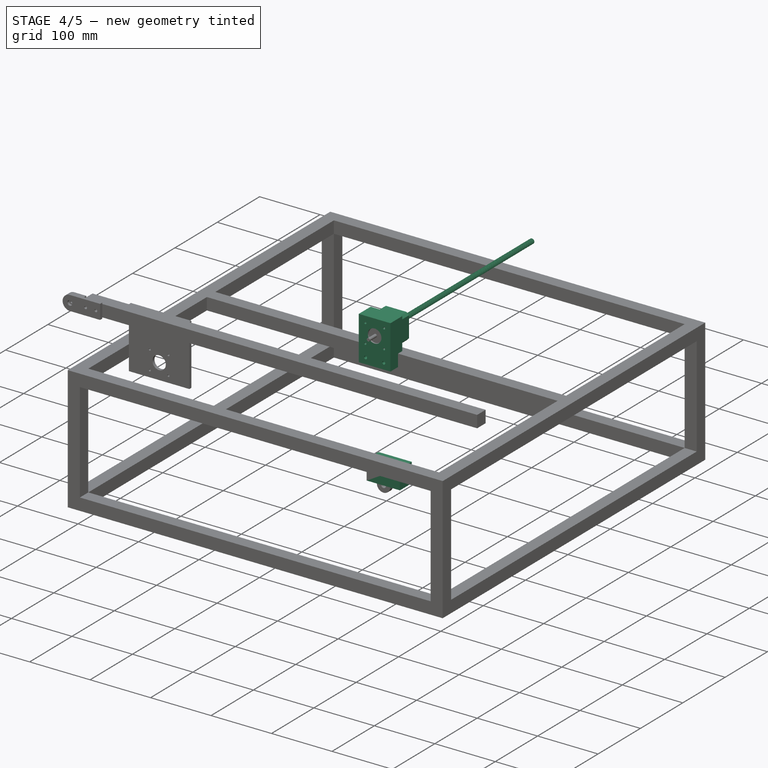
[diagram: stage 4 of 5 — iso view after this stage's code; geometry added in this stage tinted green]
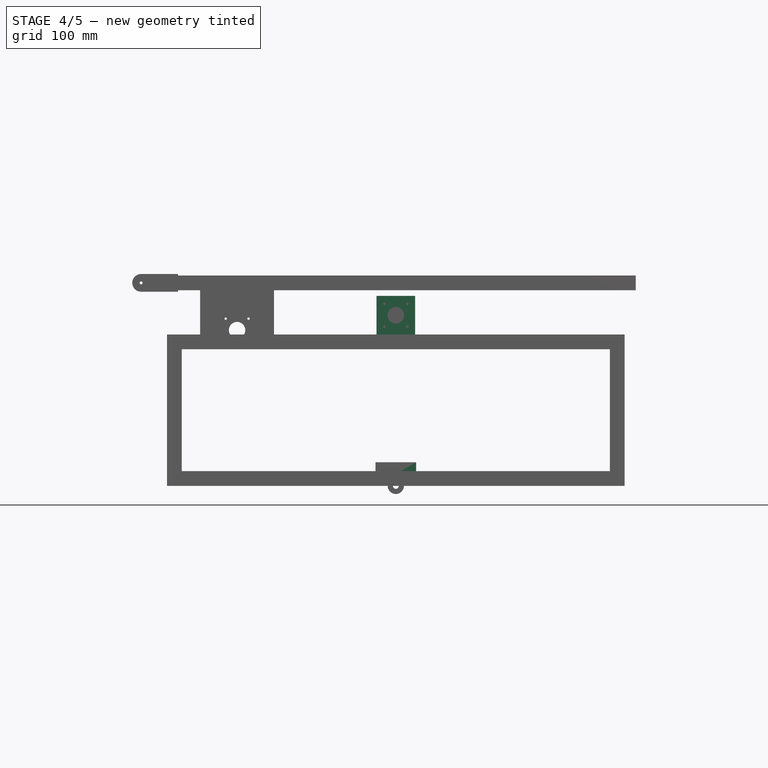
[diagram: stage 4 of 5 — front view after this stage's code; geometry added in this stage tinted green]
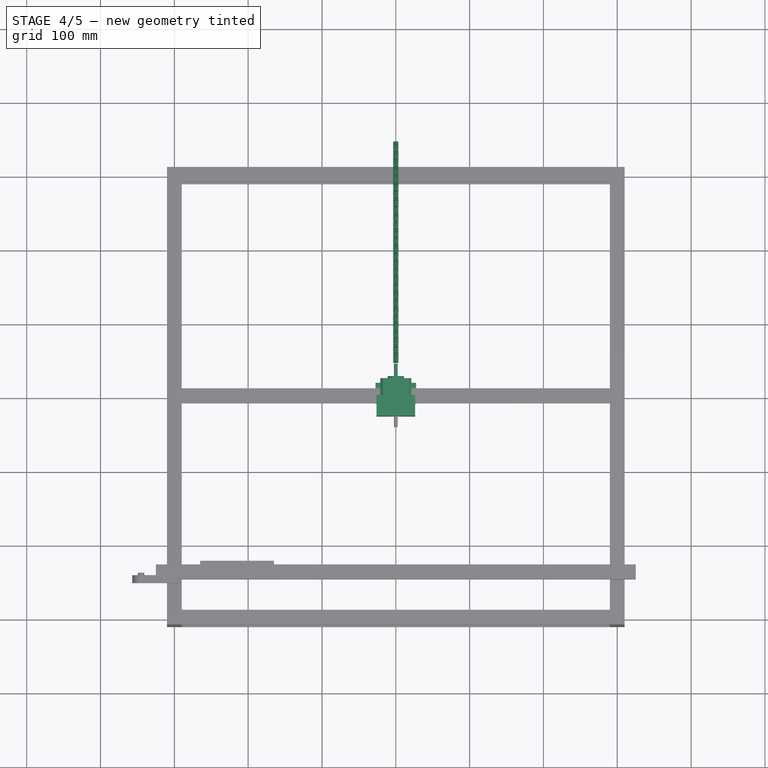
[diagram: stage 4 of 5 — top view after this stage's code; geometry added in this stage tinted green]
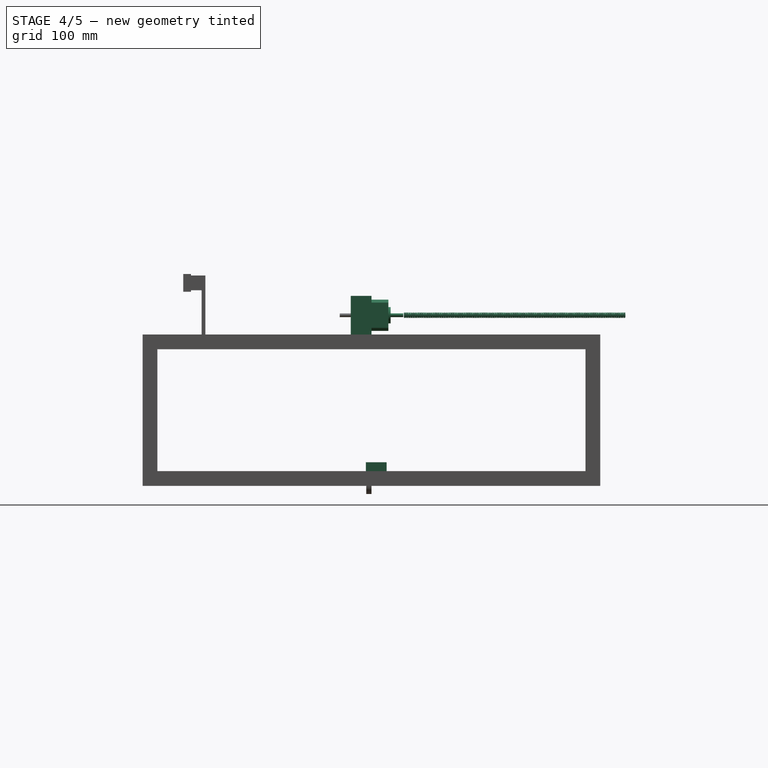
[diagram: stage 4 of 5 — right view after this stage's code; geometry added in this stage tinted green]
FEATURE [PartDesign::Body] Body007  label="Pancake Stepper "
  Group = -> [Box002,Chamfer,Chamfer001,Cylinder002,Cylinder003,LinearPattern004,LinearPattern005,Cylinder004,Cylinder005]
  Origin = -> Origin010
  Placement = pos=(-21.15,-23,210) rot=(0,0,1;0rad)
  Tip = -> Cylinder005
  expr: .Placement.Base.x = -1 * 42.3 / 2
  expr: .Placement.Base.z = <<Params>>.Carrage_Rails_Height - <<Params>>.Extrusion_width + 5
FEATURE [PartDesign::AdditiveCylinder] Cylinder006
  Angle = 360
  AttacherType = Attacher::AttachEngine3D
  FirstAngle = 0
  Height = 300
  MapMode = 5
  Placement = pos=(0,0,0) rot=(1,0,0;1.5708rad)
  Radius = 2
  SecondAngle = 0
  Support = -> [XZ_Plane]
FEATURE [Sketcher::SketchObject] Sketch005
  FullyConstrained = true
  MapMode = 5
  Placement = pos=(0,0,0) rot=(0.57735,0.57735,0.57735;2.0944rad)
  Support = -> [YZ_Plane011]
  sketch-geometry (14):
    g0: LineSegment StartX=0 StartY=2 StartZ=0 EndX=0 EndY=3 EndZ=0
    g1: LineSegment StartX=0 StartY=3 StartZ=0 EndX=-0.25 EndY=4 EndZ=0
    g2: LineSegment StartX=-0.25 StartY=4 StartZ=0 EndX=-0.5 EndY=4 EndZ=0
    g3: LineSegment StartX=-0.5 StartY=4 StartZ=0 EndX=-0.75 EndY=3 EndZ=0
    g4: LineSegment StartX=-0.75 StartY=3 StartZ=0 EndX=-1 EndY=3 EndZ=0
    g5: LineSegment StartX=-1 StartY=3 StartZ=0 EndX=-1.25 EndY=4 EndZ=0
    g6: LineSegment StartX=-1.25 StartY=4 StartZ=0 EndX=-1.5 EndY=4 EndZ=0
    g7: LineSegment StartX=-1.5 StartY=4 StartZ=0 EndX=-1.75 EndY=3 EndZ=0
    g8: LineSegment StartX=-1.75 StartY=3 StartZ=0 EndX=-2 EndY=3 EndZ=0
    g9: LineSegment StartX=-2 StartY=3 StartZ=0 EndX=-2.25 EndY=4 EndZ=0
    g10: LineSegment StartX=-2.25 StartY=4 StartZ=0 EndX=-2.5 EndY=4 EndZ=0
    g11: LineSegment StartX=-2.5 StartY=4 StartZ=0 EndX=-2.75 EndY=3 EndZ=0
    g12: LineSegment StartX=-2.75 StartY=3 StartZ=0 EndX=-2.75 EndY=2 EndZ=0
    g13: LineSegment StartX=-2.75 StartY=2 StartZ=0 EndX=0 EndY=2 EndZ=0
  constraints (42):
    c: PointOnObject(g0,g-2)
    c: PointOnObject(g0,g-2)
    c: Coincident(g1,g0)
    c: Coincident(g2,g1)
    c: Horizontal(g2)
    c: Coincident(g3,g2)
    c: Coincident(g4,g3)
    c: Horizontal(g4)
    c: Coincident(g6,g5)
    c: Horizontal(g6)
    c: Coincident(g7,g6)
    c: Coincident(g8,g7)
    c: Coincident(g9,g8)
    c: Horizontal(g10)
    c: Coincident(g11,g10)
    c: Vertical(g12)
    c: Coincident(g13,g12)
    c: Coincident(g13,g0)
    c: Horizontal(g13)
    c: Horizontal(g8)
    c: DistanceY(g0,g0) = 1
    c: DistanceY(g0,g1) = 1
    c: DistanceY(g12,g11) = 1
    c: DistanceY(g12,g8) = 1
    c: DistanceY(g0,g4) = 1
    c: DistanceX(g1,g0) = 0.25
    c: DistanceX(g2,g1) = 0.25
    c: DistanceX(g3,g2) = 0.25
    c: DistanceX(g4,g3) = 0.25
    c: Coincident(g4,g5)
    c: DistanceX(g5,g4) = 0.25
    c: DistanceX(g6,g5) = 0.25
    c: DistanceX(g7,g6) = 0.25
    c: DistanceX(g8,g7) = 0.25
    c: DistanceX(g9,g8) = 0.25
    c: Coincident(g9,g10)
    c: DistanceX(g10,g9) = 0.25
    c: DistanceX(g11,g10) = 0.25
    c: Coincident(g11,g12)
    c: DistanceY(g11,g10) = 1
    c: DistanceY(g7,g6) = 1
    c: DistanceY(g-1,g0) = 2
FEATURE [PartDesign::Revolution] Revolution
  Angle = 360
  Axis = (3e-16,1,-2e-16)
  Base = (0,0,0)
  BaseFeature = -> Cylinder006
  Placement = pos=(0,0,0) rot=(1,0,0;1.5708rad)
  Profile = -> Sketch005
  ReferenceAxis = -> Sketch005 [H_Axis]
FEATURE [PartDesign::LinearPattern] LinearPattern006
  BaseFeature = -> Revolution
  Direction = -> Sketch005 [H_Axis]
  Length = 297
  Occurrences = 100
  Originals = -> [Revolution]
  Placement = pos=(0,0,0) rot=(1,0,0;1.5708rad)
  Reversed = true
FEATURE [PartDesign::Body] Body009  label="Pillow Block"
  Group = -> [Sketch006,Pad005,Cylinder007]
  Origin = -> Origin012
  Placement = pos=(0,-293.5,217) rot=(0,0,1;0rad)
  Tip = -> Cylinder007
  expr: .Placement.Base.x = 0
  expr: .Placement.Base.y = -1 * <<Params>>.Total_Y / 2 + <<Params>>.Extrusion_width / 2 - 3.5
  expr: .Placement.Base.z = <<Params>>.Carrage_Rails_Height - 8
FEATURE [PartDesign::AdditiveBox] Box003
  AttacherType = Attacher::AttachEngine3D
  AttachmentOffset = pos=(-27.5,-7.5,0) rot=(0,0,1;0rad)
  Height = 32
  Length = 55
  MapMode = 5
  Placement = pos=(-27.5,-7.5,0) rot=(0,0,1;0rad)
  Support = -> [XY_Plane]
  Width = 28
  expr: .AttachmentOffset.Base.x = -55 / 2
  expr: .AttachmentOffset.Base.y = -15 / 2
FEATURE [PartDesign::Body] Body010  label="Pillow Block Adapter"
  Group = -> [Box003,Box004,Cylinder008,LinearPattern007]
  Origin = -> Origin014
  Placement = pos=(0,-310.5,185) rot=(0,0,1;0rad)
  Tip = -> LinearPattern007
  expr: .Placement.Base.y = -1 * <<Params>>.Total_Y / 2 - <<Params>>.Extrusion_width / 2 - 0.5
  expr: .Placement.Base.z = <<Params>>.Carrage_Rails_Height - 40
FEATURE [PartDesign::FeatureBase] Clone003  label="Back Pancake Stepper"
  BaseFeature = -> Body007
  Placement = pos=(21.15,23,210) rot=(0,0,1;3.14159rad)
FEATURE [PartDesign::FeatureBase] Clone004  label="Back Lead Screw"
  BaseFeature = -> Body008
  Placement = pos=(0,44,231.15) rot=(0,0,1;3.14159rad)
FEATURE [PartDesign::SubtractiveCylinder] Cylinder010
  Angle = 360
  AttacherType = Attacher::AttachEngine3D
  AttachmentOffset = pos=(-15.5,30.65,0) rot=(0,0,1;0rad)
  BaseFeature = -> Mirrored001
  FirstAngle = 0
  Height = 30
  MapMode = 5
  Placement = pos=(-15.5,-6.8e-15,30.65) rot=(1,0,0;1.5708rad)
  Radius = 1.75
  SecondAngle = 0
  Support = -> [XZ_Plane015]
  expr: .AttachmentOffset.Base.x = -31 / 2
  expr: .AttachmentOffset.Base.y = <<Params>>.Extrusion_width + 5 + 5.65
FEATURE [PartDesign::SubtractiveCylinder] Cylinder011
  Angle = 360
  AttacherType = Attacher::AttachEngine3D
  AttachmentOffset = pos=(15.5,30.65,0) rot=(0,0,1;0rad)
  BaseFeature = -> Cylinder010
  FirstAngle = 0
  Height = 30
  MapMode = 5
  Placement = pos=(15.5,-6.8e-15,30.65) rot=(1,0,0;1.5708rad)
  Radius = 1.75
  SecondAngle = 0
  Support = -> [XZ_Plane015]
  expr: .AttachmentOffset.Base.x = 31 / 2
  expr: .AttachmentOffset.Base.y = <<Params>>.Extrusion_width + 5 + 5.65
FEATURE [PartDesign::LinearPattern] LinearPattern008
  BaseFeature = -> Cylinder011
  Direction = -> Z_Axis015
  Length = 31
  Occurrences = 2
  Originals = -> [Cylinder010]
  Placement = pos=(15.5,-6.8e-15,30.65) rot=(1,0,0;1.5708rad)
FEATURE [PartDesign::LinearPattern] LinearPattern009
  BaseFeature = -> LinearPattern008
  Direction = -> Z_Axis015
  Length = 31
  Occurrences = 2
  Originals = -> [Cylinder011]
  Placement = pos=(15.5,-6.8e-15,30.65) rot=(1,0,0;1.5708rad)
FEATURE [PartDesign::SubtractiveCylinder] Cylinder012
  Angle = 360
  AttacherType = Attacher::AttachEngine3D
  AttachmentOffset = pos=(0,46.15,0) rot=(0,0,1;0rad)
  BaseFeature = -> LinearPattern009
  FirstAngle = 0
  Height = 30
  MapMode = 5
  Placement = pos=(0,-1.02e-14,46.15) rot=(1,0,0;1.5708rad)
  Radius = 11.25
  SecondAngle = 0
  Support = -> [XZ_Plane015]
  expr: .AttachmentOffset.Base.y = <<Params>>.Extrusion_width + 5 + 21.15
FEATURE [PartDesign::Body] Body011  label="Pancake Stepper Adapter"
  Group = -> [Box005,Box006,Box007,Cylinder009,Mirrored001,Cylinder010,Cylinder011,LinearPattern008,LinearPattern009,Cylinder012]
  Origin = -> Origin015
  Placement = pos=(0,0,185) rot=(0,0,1;0rad)
  Tip = -> Cylinder012
  expr: .Placement.Base.z = <<Params>>.Carrage_Rails_Height - 40
FEATURE [App::Part] Part003  label="Printed Movement Adapters"
  Group = -> [Body010,Body011]
  Origin = -> Origin013
FEATURE [PartDesign::FeatureBase] Clone005
  BaseFeature = -> Body011
  Placement = pos=(0,0,185) rot=(0,0,1;0rad)
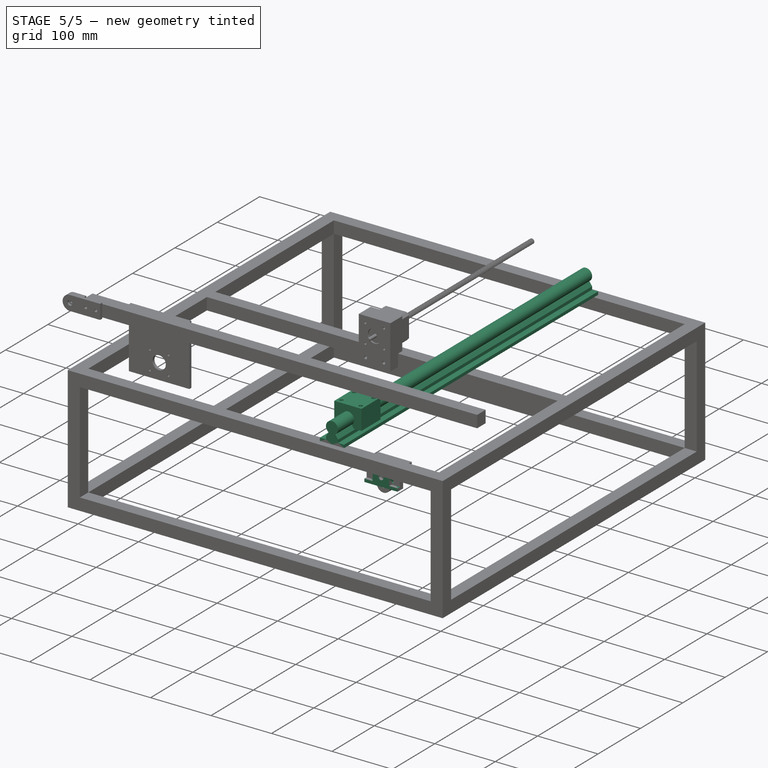
[diagram: stage 5 of 5 — iso view after this stage's code; geometry added in this stage tinted green]
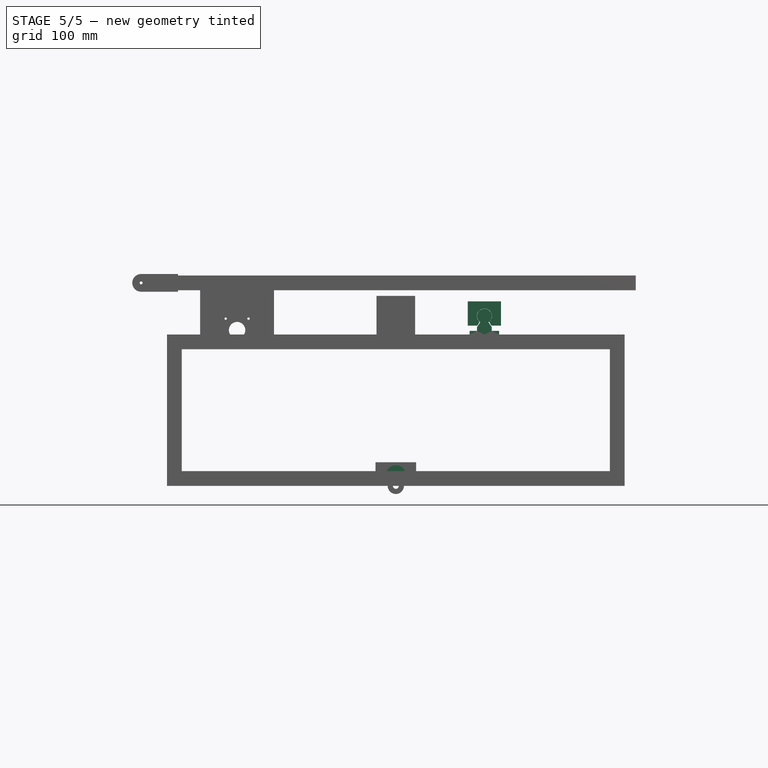
[diagram: stage 5 of 5 — front view after this stage's code; geometry added in this stage tinted green]
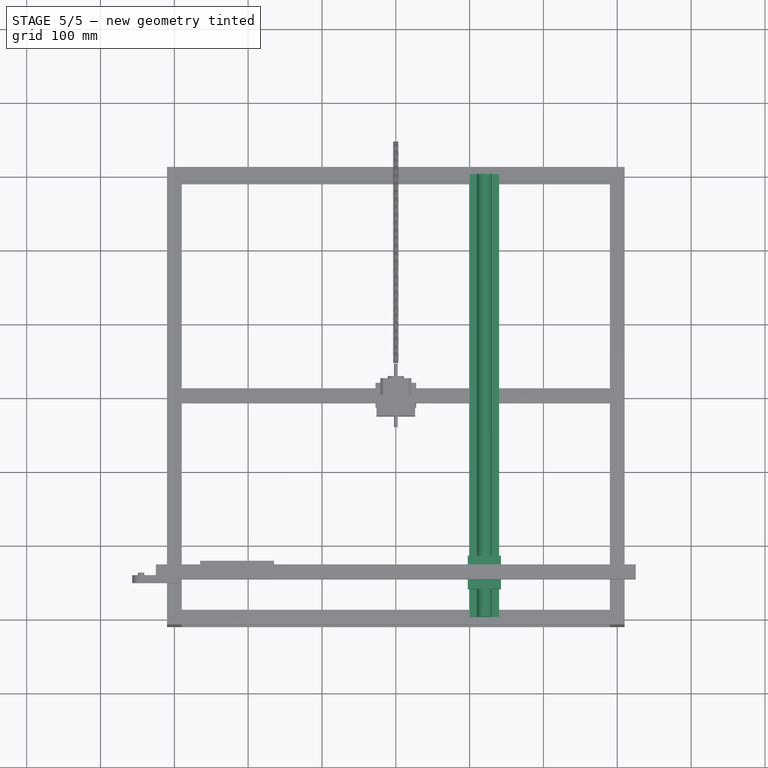
[diagram: stage 5 of 5 — top view after this stage's code; geometry added in this stage tinted green]
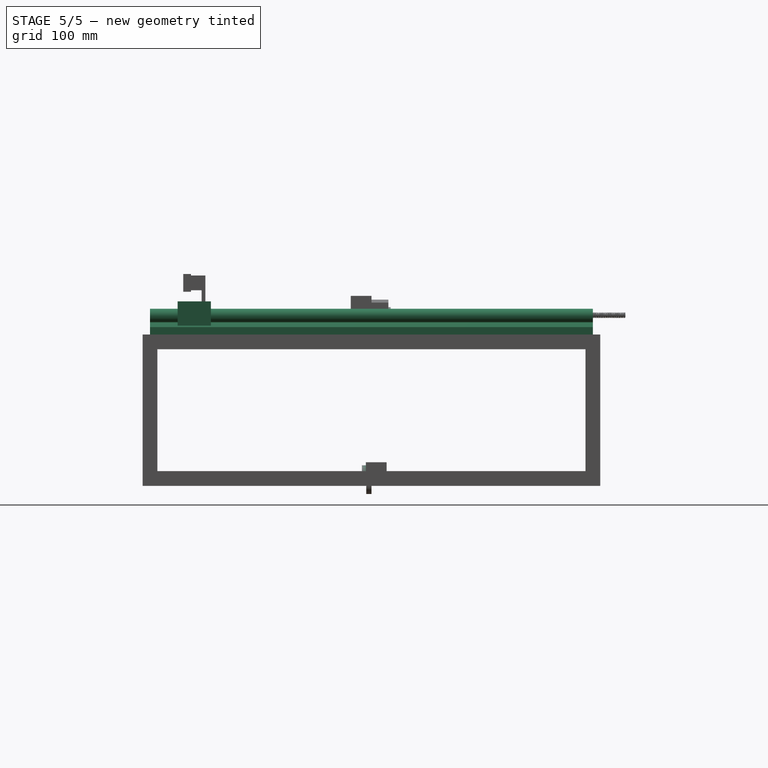
[diagram: stage 5 of 5 — right view after this stage's code; geometry added in this stage tinted green]
FEATURE [Sketcher::SketchObject] Sketch003
  AttachmentOffset = pos=(0,0,300) rot=(0,0,1;0rad)
  FullyConstrained = true
  MapMode = 5
  Placement = pos=(0,-300,-6.66e-14) rot=(1,0,0;1.5708rad)
  Support = -> [XZ_Plane005]
  expr: .AttachmentOffset.Base.y = 0
  expr: .AttachmentOffset.Base.z = <<Params>>.Total_Y / 2
  expr: Constraints[17] = <<Params>>.Carrage_Rails_Height - <<Params>>.Extrusion_width
  expr: Constraints[33] = <<Params>>.Front_Ball_Slide_Location
  sketch-geometry (11):
    g0: LineSegment StartX=-140 StartY=210 StartZ=0 EndX=-140 EndY=205 EndZ=0
    g1: LineSegment StartX=-100 StartY=205 StartZ=0 EndX=-100 EndY=210 EndZ=0
    g2: LineSegment StartX=-140 StartY=210 StartZ=0 EndX=-130 EndY=210 EndZ=0
    g3: LineSegment StartX=-100 StartY=210 StartZ=0 EndX=-110 EndY=210 EndZ=0
    g4: LineSegment StartX=-110 StartY=210 StartZ=0 EndX=-110 EndY=215 EndZ=0
    g5: LineSegment StartX=-130 StartY=210 StartZ=0 EndX=-130 EndY=215 EndZ=0
    g6: ArcOfCircle CenterX=-120 CenterY=230 CenterZ=0 NormalX=0 NormalY=0 NormalZ=1 AngleXU=0 Radius=10 StartAngle=5.30048 EndAngle=10.4075
    g7: LineSegment StartX=-114.452 StartY=221.68 StartZ=0 EndX=-110 EndY=215 EndZ=0
    g8: LineSegment StartX=-130 StartY=215 StartZ=0 EndX=-125.548 EndY=221.68 EndZ=0
    g9: LineSegment StartX=-100 StartY=205 StartZ=0 EndX=-120 EndY=205 EndZ=0
    g10: LineSegment StartX=-120 StartY=205 StartZ=0 EndX=-140 EndY=205 EndZ=0
  constraints (34):
    c: Vertical(g1)
    c: Vertical(g0)
    c: DistanceX(g0,g1) = 40
    c: DistanceY(g1,g1) = 5
    c: DistanceY(g0,g0) = 5
    c: Coincident(g2,g0)
    c: Horizontal(g2)
    c: Coincident(g3,g1)
    c: Horizontal(g3)
    c: DistanceX(g3,g1) = 10
    c: DistanceX(g0,g2) = 10
    c: Coincident(g4,g3)
    c: Vertical(g4)
    c: Coincident(g5,g2)
    c: DistanceY(g3,g4) = 5
    c: DistanceY(g2,g5) = 5
    c: Vertical(g5)
    c: DistanceY(g-1,g1) = 205
    c: Coincident(g7,g6)
    c: Coincident(g7,g4)
    c: Coincident(g8,g5)
    c: Coincident(g8,g6)
    c: DistanceY(g1,g6) = 25
    c: DistanceX(g6,g1) = 20
    c: Radius(g6) = 10
    c: DistanceY(g1,g6) = 16.68
    c: DistanceY(g0,g6) = 16.68
    c: Coincident(g9,g1)
    c: Horizontal(g9)
    c: Coincident(g10,g9)
    c: Coincident(g10,g0)
    c: Horizontal(g10)
    c: DistanceX(g0,g9) = 20
    c: DistanceX(g9,g-1) = 120
FEATURE [PartDesign::Pad] Pad003
  Direction = (0,-1,-2e-16)
  Length = 600
  Length2 = 10
  Placement = pos=(0,0,0) rot=(1,0,0;1.5708rad)
  Profile = -> Sketch003
  ReferenceAxis = -> Sketch003 [N_Axis]
  Reversed = true
  Type = 0
  expr: Length = <<Params>>.Total_Y
FEATURE [PartDesign::Body] Body003  label="Front Ball Rail"
  Group = -> [Sketch003,Pad003]
  Origin = -> Origin005
  Tip = -> Pad003
FEATURE [PartDesign::FeatureBase] Clone001
  BaseFeature = -> Pad003
  Placement = pos=(240,0,0) rot=(1,0,0;1.5708rad)
  expr: .Placement.Base.x = <<Params>>.Back_Ball_Slide_Location
FEATURE [PartDesign::Body] Body004  label="Back Ball Rail"
  BaseFeature = -> Pad003
  Group = -> [Clone001]
  Origin = -> Origin007
  Tip = -> Clone001
FEATURE [Sketcher::SketchObject] Sketch004
  AttachmentOffset = pos=(0,0,217.5) rot=(0,0,1;0rad)
  FullyConstrained = true
  MapMode = 5
  Placement = pos=(0,-217.5,-4.83e-14) rot=(1,0,0;1.5708rad)
  Support = -> [XZ_Plane008]
  expr: .AttachmentOffset.Base.z = <<Params>>.Front_Carrage_Placement - 45 / 2
  expr: Constraints[10] = <<Params>>.Front_Ball_Slide_Location
  expr: Constraints[11] = <<Params>>.Carrage_Rails_Height + 45 - <<Params>>.Extrusion_width
  sketch-geometry (9):
    g0: LineSegment StartX=-142.5 StartY=217 StartZ=0 EndX=-142.5 EndY=250 EndZ=0
    g1: LineSegment StartX=-97.5 StartY=250 StartZ=0 EndX=-97.5 EndY=217 EndZ=0
    g2: LineSegment StartX=-142.5 StartY=250 StartZ=0 EndX=-120 EndY=250 EndZ=0
    g3: LineSegment StartX=-120 StartY=250 StartZ=0 EndX=-97.5 EndY=250 EndZ=0
    g4: ArcOfCircle CenterX=-120 CenterY=230 CenterZ=0 NormalX=0 NormalY=0 NormalZ=1 AngleXU=0 Radius=10.2 StartAngle=5.40726 EndAngle=10.3007
    g5: LineSegment StartX=-142.5 StartY=217 StartZ=0 EndX=-129.5 EndY=217 EndZ=0
    g6: LineSegment StartX=-129.5 StartY=217 StartZ=0 EndX=-126.531 EndY=222.165 EndZ=0
    g7: LineSegment StartX=-97.5 StartY=217 StartZ=0 EndX=-110.5 EndY=217 EndZ=0
    g8: LineSegment StartX=-113.469 StartY=222.165 StartZ=0 EndX=-110.5 EndY=217 EndZ=0
  constraints (28):
    c: Vertical(g0)
    c: Vertical(g1)
    c: DistanceY(g0,g0) = 33
    c: DistanceX(g0,g1) = 45
    c: Coincident(g2,g0)
    c: Horizontal(g2)
    c: Coincident(g3,g2)
    c: Coincident(g3,g1)
    c: Horizontal(g3)
    c: DistanceX(g2,g1) = 22.5
    c: DistanceX(g2,g-1) = 120
    c: DistanceY(g-1,g2) = 250
    c: DistanceY(g1,g1) = 33
    c: DistanceX(g2,g4) = 0
    c: Radius(g4) = 10.2
    c: DistanceY(g4,g2) = 20
    c: DistanceY(g1,g4) = 5.165
    c: DistanceY(g0,g4) = 5.165
    c: Coincident(g5,g0)
    c: Horizontal(g5)
    c: Coincident(g6,g4)
    c: Coincident(g7,g1)
    c: Horizontal(g7)
    c: Coincident(g8,g4)
    c: Coincident(g8,g7)
    c: DistanceX(g0,g6) = 13
    c: DistanceX(g7,g1) = 13
    c: Coincident(g6,g5)
FEATURE [PartDesign::Pad] Pad004
  Direction = (0,-1,-2e-16)
  Length = 45
  Length2 = 10
  Placement = pos=(0,0,0) rot=(1,0,0;1.5708rad)
  Profile = -> Sketch004
  ReferenceAxis = -> Sketch004 [N_Axis]
  Type = 0
FEATURE [PartDesign::SubtractiveCylinder] Cylinder
  Angle = 360
  AttacherType = Attacher::AttachEngine3D
  AttachmentOffset = pos=(-136,-255,245) rot=(0,0,1;0rad)
  BaseFeature = -> Pad004
  FirstAngle = 0
  Height = 10
  MapMode = 5
  Placement = pos=(-136,-255,245) rot=(0,0,1;0rad)
  Radius = 3
  SecondAngle = 0
  Support = -> [XY_Plane]
  expr: .AttachmentOffset.Base.x = -1 * <<Params>>.Front_Ball_Slide_Location - 16
  expr: .AttachmentOffset.Base.y = -1 * <<Params>>.Front_Carrage_Placement - 15
  expr: .AttachmentOffset.Base.z = <<Params>>.Carrage_Rails_Height + 20
FEATURE [PartDesign::LinearPattern] LinearPattern002
  BaseFeature = -> Cylinder
  Direction = -> Y_Axis008
  Length = 30
  Occurrences = 2
  Originals = -> [Cylinder]
  Placement = pos=(-136,-255,245) rot=(0,0,1;0rad)
FEATURE [PartDesign::SubtractiveCylinder] Cylinder001
  Angle = 360
  AttacherType = Attacher::AttachEngine3D
  AttachmentOffset = pos=(-104,-255,245) rot=(0,0,1;0rad)
  BaseFeature = -> LinearPattern002
  FirstAngle = 0
  Height = 10
  MapMode = 5
  Placement = pos=(-104,-255,245) rot=(0,0,1;0rad)
  Radius = 3
  SecondAngle = 0
  Support = -> [XY_Plane]
  expr: .AttachmentOffset.Base.x = -1 * <<Params>>.Front_Ball_Slide_Location + 16
  expr: .AttachmentOffset.Base.y = -1 * <<Params>>.Front_Carrage_Placement - 15
  expr: .AttachmentOffset.Base.z = <<Params>>.Carrage_Rails_Height + 20
FEATURE [PartDesign::LinearPattern] LinearPattern003
  BaseFeature = -> Cylinder001
  Direction = -> Y_Axis008
  Length = 30
  Occurrences = 2
  Originals = -> [Cylinder001]
  Placement = pos=(-104,-255,245) rot=(0,0,1;0rad)
FEATURE [PartDesign::Body] Body005  label="Front Ball Rail Carrage"
  Group = -> [Sketch004,Pad004,Cylinder,LinearPattern002,Cylinder001,LinearPattern003]
  Origin = -> Origin008
  Tip = -> LinearPattern003
FEATURE [PartDesign::FeatureBase] Clone002
  BaseFeature = -> Body005
  Placement = pos=(240,0,0) rot=(0,0,1;0rad)
  expr: .Placement.Base.x = <<Params>>.Back_Ball_Slide_Location
FEATURE [PartDesign::Body] Body008  label="Lead Screw"
  Group = -> [Cylinder006,Sketch005,Revolution,LinearPattern006]
  Origin = -> Origin011
  Placement = pos=(0,-44,231.15) rot=(0,0,1;0rad)
  Tip = -> LinearPattern006
  expr: .Placement.Base.z = <<Params>>.Carrage_Rails_Height - <<Params>>.Extrusion_width + 5 + 42.3 / 2
FEATURE [Sketcher::SketchObject] Sketch006
  FullyConstrained = true
  MapMode = 5
  Placement = pos=(0,0,0) rot=(1,0,0;1.5708rad)
  Support = -> [XZ_Plane012]
  expr: Constraints[10] = 55 / 2
  expr: Constraints[14] = 55 / 4
  expr: Constraints[15] = 55 / 4
  expr: Constraints[20] = 28 - 13.75
  expr: Constraints[21] = 28 - 13.75
  expr: Constraints[22] = 28 - 13.75
  expr: Constraints[9] = 55 / 2
  sketch-geometry (9):
    g0: LineSegment StartX=27.5 StartY=0 StartZ=0 EndX=27.5 EndY=5 EndZ=0
    g1: LineSegment StartX=-27.5 StartY=0 StartZ=0 EndX=-27.5 EndY=5 EndZ=0
    g2: LineSegment StartX=-27.5 StartY=5 StartZ=0 EndX=-13.75 EndY=5 EndZ=0
    g3: LineSegment StartX=-27.5 StartY=0 StartZ=0 EndX=0 EndY=0 EndZ=0
    g4: LineSegment StartX=0 StartY=0 StartZ=0 EndX=27.5 EndY=0 EndZ=0
    g5: LineSegment StartX=27.5 StartY=5 StartZ=0 EndX=13.75 EndY=5 EndZ=0
    g6: ArcOfCircle CenterX=0 CenterY=14.25 CenterZ=0 NormalX=0 NormalY=0 NormalZ=1 AngleXU=0 Radius=13.75 StartAngle=0 EndAngle=3.14159
    g7: LineSegment StartX=13.75 StartY=5 StartZ=0 EndX=13.75 EndY=14.25 EndZ=0
    g8: LineSegment StartX=-13.75 StartY=5 StartZ=0 EndX=-13.75 EndY=14.25 EndZ=0
  constraints (27):
    c: Vertical(g0)
    c: Vertical(g1)
    c: Horizontal(g2)
    c: Coincident(g3,g1)
    c: Horizontal(g3)
    c: Coincident(g4,g3)
    c: Coincident(g4,g0)
    c: Horizontal(g4)
    c: Coincident(g3,g-1)
    c: DistanceX(g3,g0) = 27.5
    c: DistanceX(g1,g3) = 27.5
    c: Coincident(g2,g1)
    c: Coincident(g5,g0)
    c: Horizontal(g5)
    c: DistanceX(g5,g0) = 13.75
    c: DistanceX(g1,g2) = 13.75
    c: DistanceY(g0,g0) = 5
    c: DistanceY(g1,g1) = 5
    c: PointOnObject(g6,g-2)
    c: Radius(g6) = 13.75
    c: DistanceY(g0,g6) = 14.25
    c: DistanceY(g1,g6) = 14.25
    c: DistanceY(g0,g6) = 14.25
    c: Coincident(g7,g5)
    c: Coincident(g7,g6)
    c: Coincident(g8,g2)
    c: Coincident(g8,g6)
FEATURE [PartDesign::Pad] Pad005
  Direction = (0,-1,2e-16)
  Length = 13
  Length2 = 10
  Placement = pos=(0,0,0) rot=(1,0,0;1.5708rad)
  Profile = -> Sketch006
  ReferenceAxis = -> Sketch006 [N_Axis]
  Type = 0
FEATURE [PartDesign::SubtractiveCylinder] Cylinder007
  Angle = 360
  AttacherType = Attacher::AttachEngine3D
  AttachmentOffset = pos=(0,14,-1) rot=(0,0,1;0rad)
  BaseFeature = -> Pad005
  FirstAngle = 0
  Height = 15
  MapMode = 5
  Placement = pos=(0,1,14) rot=(1,0,0;1.5708rad)
  Radius = 4
  SecondAngle = 0
  Support = -> [XZ_Plane012]
  expr: .AttachmentOffset.Base.y = 28 * 0.5
FEATURE [PartDesign::SubtractiveBox] Box004
  AttacherType = Attacher::AttachEngine3D
  AttachmentOffset = pos=(-27.5,0,0) rot=(0,0,1;0rad)
  BaseFeature = -> Box003
  Height = 20
  Length = 55
  MapMode = 5
  Placement = pos=(-27.5,0,0) rot=(0,0,1;0rad)
  Support = -> [XY_Plane014]
  Width = 21
  expr: .AttachmentOffset.Base.x = -55 / 2
FEATURE [PartDesign::SubtractiveCylinder] Cylinder008
  Angle = 360
  AttacherType = Attacher::AttachEngine3D
  AttachmentOffset = pos=(-15,10,0) rot=(0,0,1;0rad)
  BaseFeature = -> Box004
  FirstAngle = 0
  Height = 10
  MapMode = 5
  Placement = pos=(-15,-2.2e-15,10) rot=(1,0,0;1.5708rad)
  Radius = 2.5
  SecondAngle = 0
  Support = -> [XZ_Plane014]
FEATURE [PartDesign::LinearPattern] LinearPattern007
  BaseFeature = -> Cylinder008
  Direction = -> X_Axis014
  Length = 30
  Occurrences = 2
  Originals = -> [Cylinder008]
  Placement = pos=(-15,2.2e-15,10) rot=(1,0,0;1.5708rad)
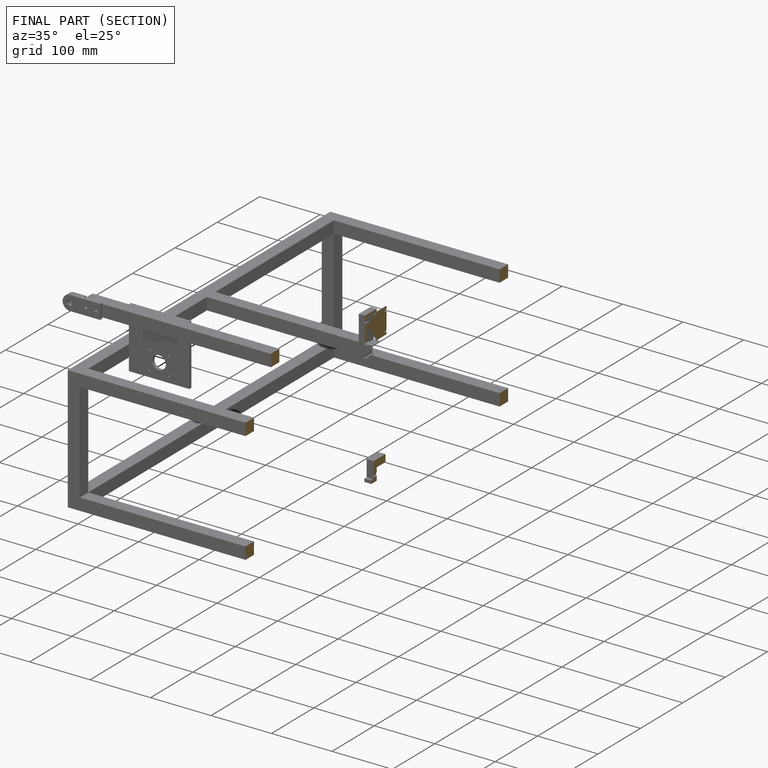
[diagram: finished part — half-section view (interior)]
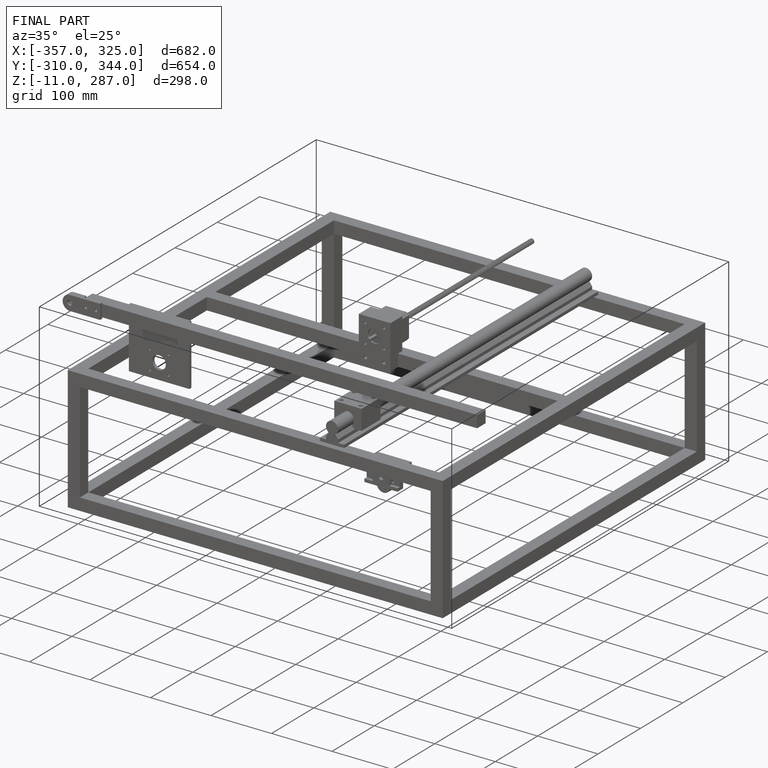
[diagram: finished part — iso view with bounding-box wireframe]
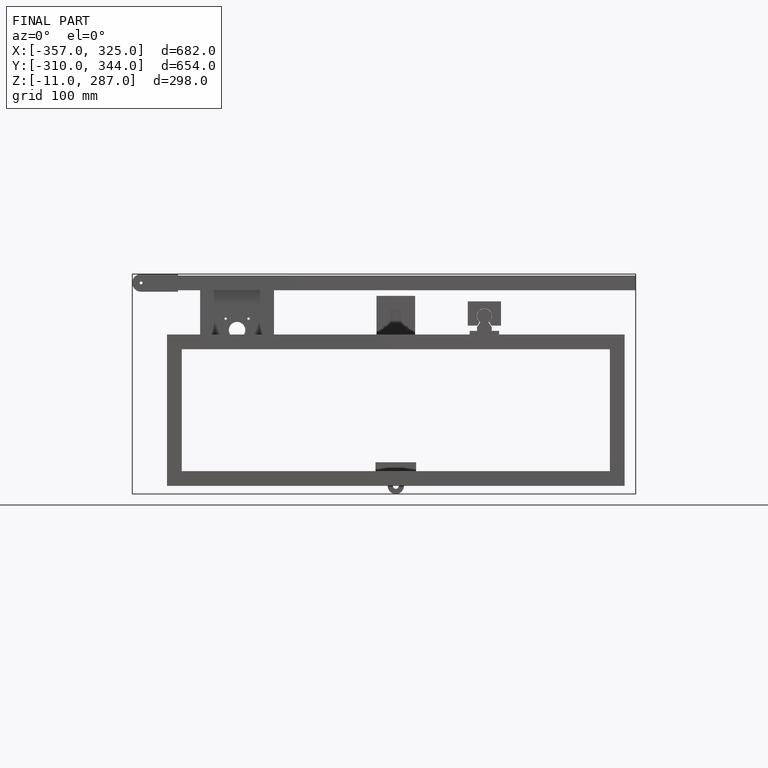
[diagram: finished part — front view with bounding-box wireframe]
